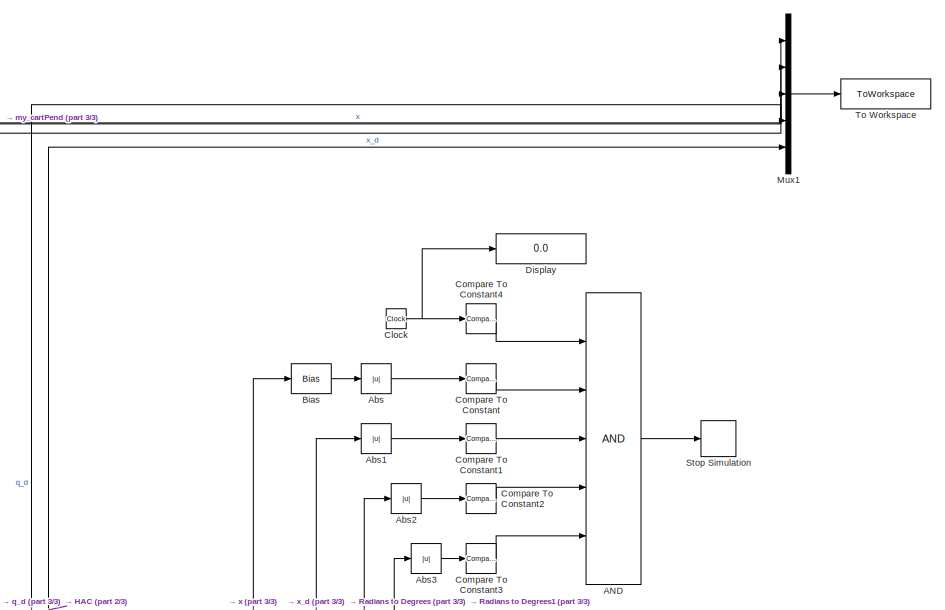
[diagram: root canvas - part 1/3, top right region]
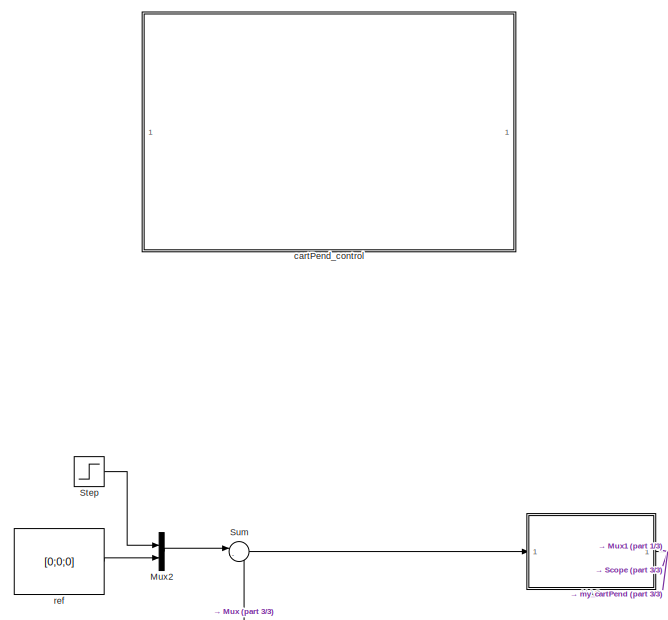
[diagram: root canvas - part 2/3, middle left region]
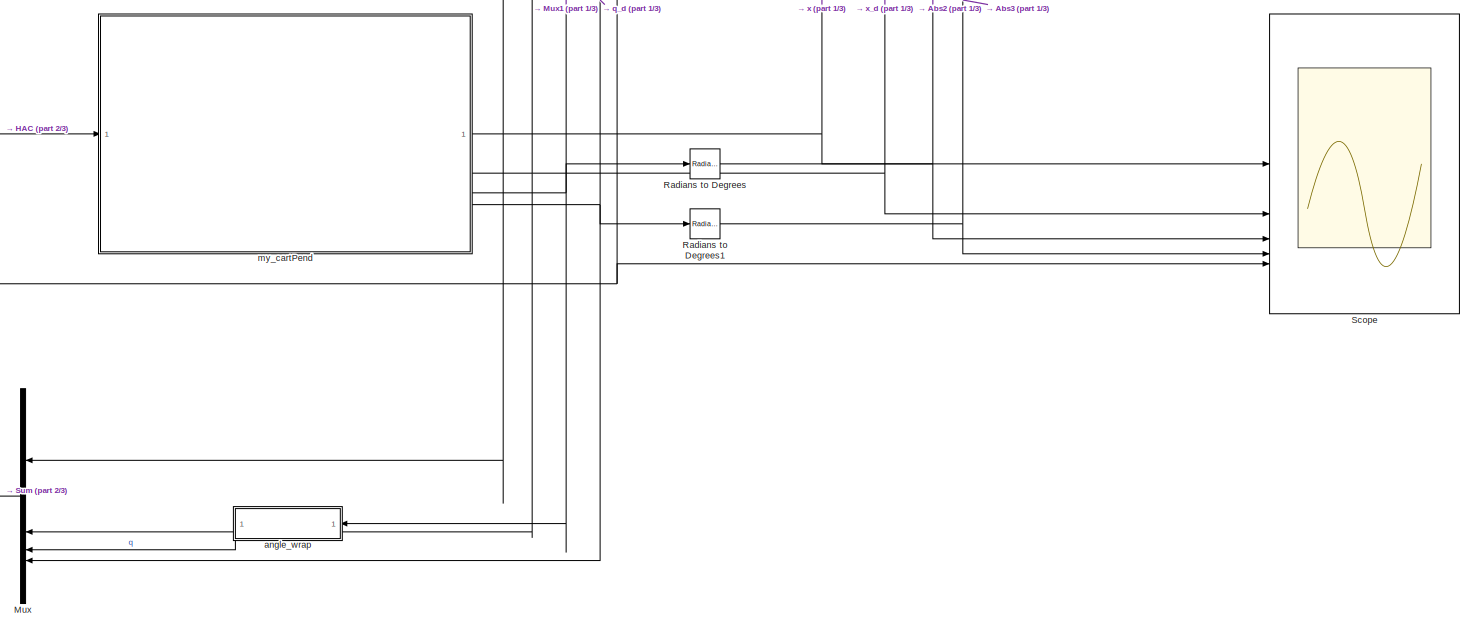
[diagram: root canvas - part 3/3, bottom right region]
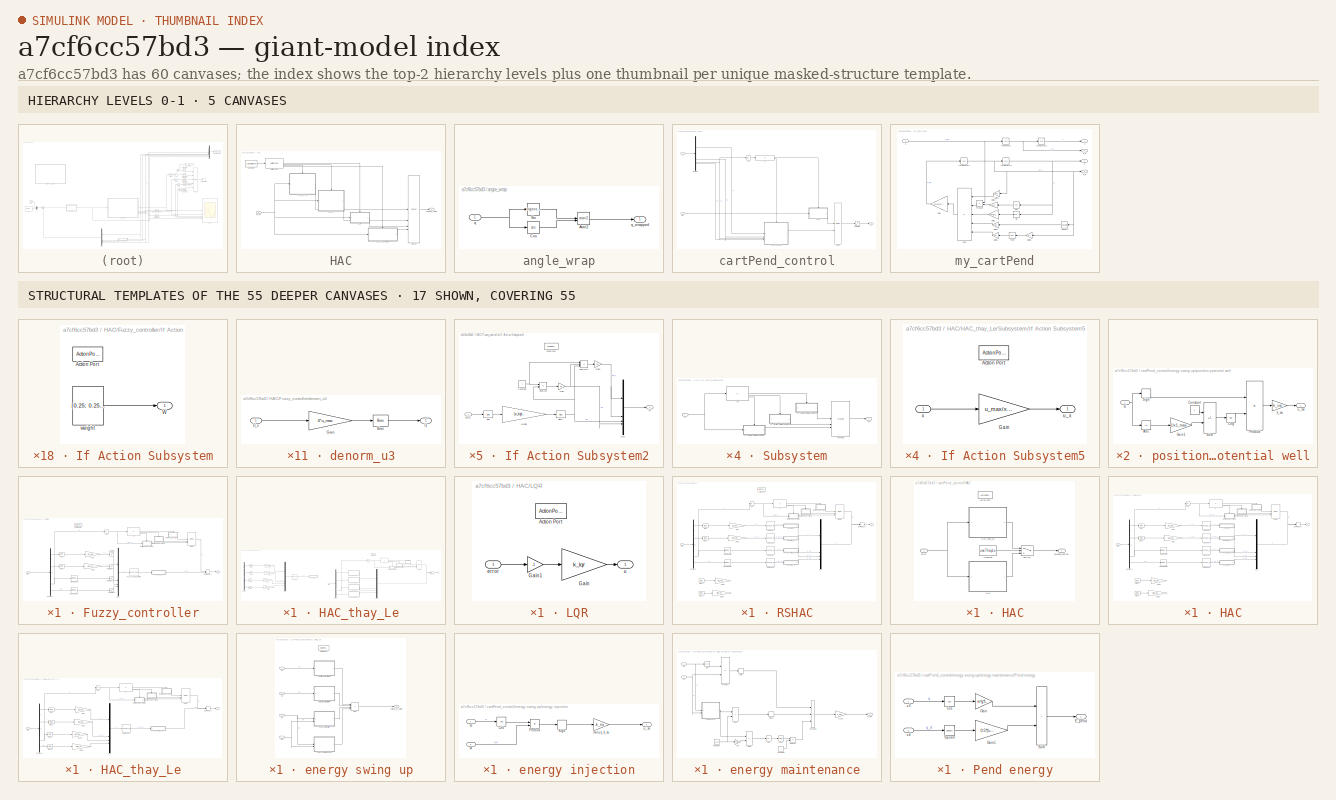
[diagram: thumbnail index - top-2 hierarchy levels (5 canvases) + 17 structural-template representatives of the remaining 55 canvases]
MODEL slx_a7cf6cc57bd3
KIND model
CONFIG AbsTol = auto
CONFIG EnableMultiTasking = off
CONFIG FixedStep = 0.001
CONFIG MaxStep = auto
CONFIG MinStep = auto
CONFIG RelTol = 1e-3
CONFIG SampleTimeConstraint = Unconstrained
CONFIG SolverName = ode4
CONFIG StartTime = 0.0
CONFIG StopTime = 8
BLOCK [Logic] AND
  AllPortsSameDT = off
  Inputs = 5
  OutDataTypeStr = boolean
BLOCK [Abs] Abs
  SaturateOnIntegerOverflow = off
BLOCK [Abs] Abs1
  SaturateOnIntegerOverflow = off
BLOCK [Abs] Abs2
  SaturateOnIntegerOverflow = off
BLOCK [Abs] Abs3
  SaturateOnIntegerOverflow = off
BLOCK [Bias] Bias
  Bias = -target_pos
  SaturateOnIntegerOverflow = off
BLOCK [Clock] Clock
BLOCK [Reference] Compare To Constant  REF=simulink/Logic and Bit
Operations/Compare
To Constant
  SourceBlock = simulink/Logic and Bit\nOperations/Compare\nTo Constant
  SourceType = Compare To Constant
BLOCK [Reference] Compare To Constant1  REF=simulink/Logic and Bit
Operations/Compare
To Constant
  SourceBlock = simulink/Logic and Bit\nOperations/Compare\nTo Constant
  SourceType = Compare To Constant
BLOCK [Reference] Compare To Constant2  REF=simulink/Logic and Bit
Operations/Compare
To Constant
  SourceBlock = simulink/Logic and Bit\nOperations/Compare\nTo Constant
  SourceType = Compare To Constant
BLOCK [Reference] Compare To Constant3  REF=simulink/Logic and Bit
Operations/Compare
To Constant
  SourceBlock = simulink/Logic and Bit\nOperations/Compare\nTo Constant
  SourceType = Compare To Constant
BLOCK [Reference] Compare To Constant4  REF=simulink/Logic and Bit
Operations/Compare
To Constant
  SourceBlock = simulink/Logic and Bit\nOperations/Compare\nTo Constant
  SourceType = Compare To Constant
BLOCK [Display] Display
  Decimation = 1
BLOCK [SubSystem] HAC
  TreatAsAtomicUnit = on
BLOCK [Constant] HAC/Constant
  Value = caseSwitch
BLOCK [SubSystem] HAC/Fuzzy_controller
  TreatAsAtomicUnit = on
BLOCK [Abs] HAC/Fuzzy_controller/Abs
  SaturateOnIntegerOverflow = off
BLOCK [ActionPort] HAC/Fuzzy_controller/Action Port
  ActionPortLabel = case [ 4 ]:
BLOCK [Bias] HAC/Fuzzy_controller/Bias
  Bias = -x_min
  SaturateOnIntegerOverflow = off
BLOCK [Bias] HAC/Fuzzy_controller/Bias1
  Bias = -xd_min
  SaturateOnIntegerOverflow = off
BLOCK [Demux] HAC/Fuzzy_controller/Demux4
BLOCK [DotProduct] HAC/Fuzzy_controller/Dot Product
  OutDataTypeStr = Inherit: Inherit via internal rule
BLOCK [Reference] HAC/Fuzzy_controller/Fuzzy Logic Controller  REF=fuzblock/Fuzzy Logic   (lib defined in mdl_858b3b3e7478)
Controller
  SourceBlock = fuzblock/Fuzzy Logic \nController
  SourceType = Fuzzy Inference System
BLOCK [Gain] HAC/Fuzzy_controller/Gain
  Gain = 1/(x_max-x_min)
BLOCK [Gain] HAC/Fuzzy_controller/Gain1
  Gain = 1/(xd_max-xd_min)
BLOCK [If] HAC/Fuzzy_controller/If
  ElseIfExpressions = u1 >= beta
  IfExpression = u1 <= alpha
BLOCK [SubSystem] HAC/Fuzzy_controller/If Action Subsystem
  TreatAsAtomicUnit = on
BLOCK [ActionPort] HAC/Fuzzy_controller/If Action Subsystem/Action Port
  ActionPortLabel = if(u1 <= alpha)
BLOCK [Outport] HAC/Fuzzy_controller/If Action Subsystem/W
BLOCK [Constant] HAC/Fuzzy_controller/If Action Subsystem/weight
  Value = [0.25; 0.25; 0.25; 0.25]
  VectorParams1D = off
BLOCK [SubSystem] HAC/Fuzzy_controller/If Action Subsystem1
  TreatAsAtomicUnit = on
BLOCK [ActionPort] HAC/Fuzzy_controller/If Action Subsystem1/Action Port
  ActionPortLabel = elseif(u1 >= beta)
BLOCK [Outport] HAC/Fuzzy_controller/If Action Subsystem1/W
BLOCK [Constant] HAC/Fuzzy_controller/If Action Subsystem1/weights
  Value = [0; 0; 1; 0]
  VectorParams1D = off
BLOCK [SubSystem] HAC/Fuzzy_controller/If Action Subsystem2
  TreatAsAtomicUnit = on
BLOCK [ActionPort] HAC/Fuzzy_controller/If Action Subsystem2/Action Port
  ActionPortLabel = else
BLOCK [Bias] HAC/Fuzzy_controller/If Action Subsystem2/Bias
  Bias = -alpha
  SaturateOnIntegerOverflow = off
BLOCK [Bias] HAC/Fuzzy_controller/If Action Subsystem2/Bias1
  Bias = w_low
  SaturateOnIntegerOverflow = off
BLOCK [Constant] HAC/Fuzzy_controller/If Action Subsystem2/Constant
BLOCK [Gain] HAC/Fuzzy_controller/If Action Subsystem2/Gain
  Gain = 0.5
BLOCK [Gain] HAC/Fuzzy_controller/If Action Subsystem2/Gain1
  Gain = 0.5
BLOCK [Gain] HAC/Fuzzy_controller/If Action Subsystem2/Multiply
  Gain = (w_high - w_low)/(beta - alpha)
BLOCK [Mux] HAC/Fuzzy_controller/If Action Subsystem2/Mux
  DisplayOption = bar
BLOCK [Sum] HAC/Fuzzy_controller/If Action Subsystem2/Subtract
  IconShape = rectangular
  Inputs = +-
BLOCK [Sum] HAC/Fuzzy_controller/If Action Subsystem2/Subtract1
  IconShape = rectangular
  Inputs = +--
BLOCK [Outport] HAC/Fuzzy_controller/If Action Subsystem2/W
BLOCK [Inport] HAC/Fuzzy_controller/If Action Subsystem2/abs_q
BLOCK [Merge] HAC/Fuzzy_controller/Merge
  Inputs = 3
BLOCK [Mux] HAC/Fuzzy_controller/Mux
  DisplayOption = bar
BLOCK [Saturate] HAC/Fuzzy_controller/Saturation
  LowerLimit = 0.25
  UpperLimit = 0.75
BLOCK [Saturate] HAC/Fuzzy_controller/Saturation1
  LowerLimit = 0.25
  UpperLimit = 0.75
BLOCK [Saturate] HAC/Fuzzy_controller/Saturation2
  LowerLimit = 0.25
  UpperLimit = 0.75
BLOCK [Saturate] HAC/Fuzzy_controller/Saturation3
  LowerLimit = 0.25
  UpperLimit = 0.75
BLOCK [Reference] HAC/Fuzzy_controller/Sigmoidal MF  REF=fuzblock/Membership   (lib defined in mdl_858b3b3e7478)
Functions/Sigmoidal MF
  SourceBlock = fuzblock/Membership \nFunctions/Sigmoidal MF
  SourceType = Sigmoidal membership function
BLOCK [Reference] HAC/Fuzzy_controller/Sigmoidal MF1  REF=fuzblock/Membership   (lib defined in mdl_858b3b3e7478)
Functions/Sigmoidal MF
  SourceBlock = fuzblock/Membership \nFunctions/Sigmoidal MF
  SourceType = Sigmoidal membership function
BLOCK [SubSystem] HAC/Fuzzy_controller/denorm_u3
BLOCK [Bias] HAC/Fuzzy_controller/denorm_u3/Bias
  Bias = 2*u_min
  SaturateOnIntegerOverflow = off
BLOCK [Gain] HAC/Fuzzy_controller/denorm_u3/Gain
  Gain = 4*u_max
BLOCK [Outport] HAC/Fuzzy_controller/denorm_u3/U
BLOCK [Inport] HAC/Fuzzy_controller/denorm_u3/U_s
BLOCK [Inport] HAC/Fuzzy_controller/error
BLOCK [Outport] HAC/Fuzzy_controller/u
BLOCK [SubSystem] HAC/HAC_thay_Le
BLOCK [Abs] HAC/HAC_thay_Le/Abs
  SaturateOnIntegerOverflow = off
BLOCK [ActionPort] HAC/HAC_thay_Le/Action Port
  ActionPortLabel = case [ 3 ]:
BLOCK [Bias] HAC/HAC_thay_Le/Bias
  Bias = -x_min
  Commented = on
  SaturateOnIntegerOverflow = off
BLOCK [Bias] HAC/HAC_thay_Le/Bias1
  Bias = -xd_min
  Commented = on
  SaturateOnIntegerOverflow = off
BLOCK [Bias] HAC/HAC_thay_Le/Bias2
  Bias = -q_min
  Commented = on
  SaturateOnIntegerOverflow = off
BLOCK [Bias] HAC/HAC_thay_Le/Bias3
  Bias = -qd_min
  Commented = on
  SaturateOnIntegerOverflow = off
BLOCK [Demux] HAC/HAC_thay_Le/Demux1
BLOCK [Demux] HAC/HAC_thay_Le/Demux4
  Commented = on
BLOCK [DotProduct] HAC/HAC_thay_Le/Dot Product
  OutDataTypeStr = Inherit: Inherit via internal rule
BLOCK [Gain] HAC/HAC_thay_Le/Gain
  Commented = on
  Gain = 1/(x_max-x_min)
BLOCK [Gain] HAC/HAC_thay_Le/Gain1
  Commented = on
  Gain = 1/(xd_max-xd_min)
BLOCK [Gain] HAC/HAC_thay_Le/Gain2
  Commented = on
  Gain = 1/(q_max-q_min)
BLOCK [Gain] HAC/HAC_thay_Le/Gain3
  Commented = on
  Gain = 1/(qd_max-qd_min)
BLOCK [If] HAC/HAC_thay_Le/If
  ElseIfExpressions = u1 >= beta
  IfExpression = u1 <= alpha
BLOCK [SubSystem] HAC/HAC_thay_Le/If Action Subsystem
  TreatAsAtomicUnit = on
BLOCK [ActionPort] HAC/HAC_thay_Le/If Action Subsystem/Action Port
  ActionPortLabel = if(u1 <= alpha)
BLOCK [Outport] HAC/HAC_thay_Le/If Action Subsystem/W
BLOCK [Constant] HAC/HAC_thay_Le/If Action Subsystem/weight
  Value = [0.25; 0.25; 0.25; 0.25]
  VectorParams1D = off
BLOCK [SubSystem] HAC/HAC_thay_Le/If Action Subsystem1
  TreatAsAtomicUnit = on
BLOCK [ActionPort] HAC/HAC_thay_Le/If Action Subsystem1/Action Port
  ActionPortLabel = elseif(u1 >= beta)
BLOCK [Outport] HAC/HAC_thay_Le/If Action Subsystem1/W
BLOCK [Constant] HAC/HAC_thay_Le/If Action Subsystem1/weights
  Value = [0; 0; 1; 0]
  VectorParams1D = off
BLOCK [SubSystem] HAC/HAC_thay_Le/If Action Subsystem2
  TreatAsAtomicUnit = on
BLOCK [ActionPort] HAC/HAC_thay_Le/If Action Subsystem2/Action Port
  ActionPortLabel = else
BLOCK [Bias] HAC/HAC_thay_Le/If Action Subsystem2/Bias2
  Bias = -alpha
  SaturateOnIntegerOverflow = off
BLOCK [Bias] HAC/HAC_thay_Le/If Action Subsystem2/Bias3
  Bias = w_low
  SaturateOnIntegerOverflow = off
BLOCK [Constant] HAC/HAC_thay_Le/If Action Subsystem2/Constant1
BLOCK [Gain] HAC/HAC_thay_Le/If Action Subsystem2/Gain2
  Gain = 0.5
BLOCK [Gain] HAC/HAC_thay_Le/If Action Subsystem2/Gain3
  Gain = 0.5
BLOCK [Gain] HAC/HAC_thay_Le/If Action Subsystem2/Multiply1
  Gain = (w_high - w_low)/(beta - alpha)
BLOCK [Mux] HAC/HAC_thay_Le/If Action Subsystem2/Mux1
  DisplayOption = bar
BLOCK [Sum] HAC/HAC_thay_Le/If Action Subsystem2/Subtract2
  IconShape = rectangular
  Inputs = +-
BLOCK [Sum] HAC/HAC_thay_Le/If Action Subsystem2/Subtract3
  IconShape = rectangular
  Inputs = +--
BLOCK [Outport] HAC/HAC_thay_Le/If Action Subsystem2/W
BLOCK [Inport] HAC/HAC_thay_Le/If Action Subsystem2/abs_q
BLOCK [Merge] HAC/HAC_thay_Le/Merge
  Inputs = 3
BLOCK [Mux] HAC/HAC_thay_Le/Mux
  Commented = on
  DisplayOption = bar
BLOCK [Mux] HAC/HAC_thay_Le/Mux1
  DisplayOption = bar
BLOCK [SubSystem] HAC/HAC_thay_Le/Subsystem
BLOCK [SubSystem] HAC/HAC_thay_Le/Subsystem/If Action Subsystem3
  TreatAsAtomicUnit = on
BLOCK [ActionPort] HAC/HAC_thay_Le/Subsystem/If Action Subsystem3/Action Port
  ActionPortLabel = if(u1 <= x_min)
BLOCK [Constant] HAC/HAC_thay_Le/Subsystem/If Action Subsystem3/Constant
  Value = u_min
BLOCK [Outport] HAC/HAC_thay_Le/Subsystem/If Action Subsystem3/u_min
BLOCK [SubSystem] HAC/HAC_thay_Le/Subsystem/If Action Subsystem4
  TreatAsAtomicUnit = on
BLOCK [ActionPort] HAC/HAC_thay_Le/Subsystem/If Action Subsystem4/Action Port
  ActionPortLabel = elseif(u1 >= x_max)
BLOCK [Constant] HAC/HAC_thay_Le/Subsystem/If Action Subsystem4/Constant
  Value = u_max
BLOCK [Outport] HAC/HAC_thay_Le/Subsystem/If Action Subsystem4/u_max
BLOCK [SubSystem] HAC/HAC_thay_Le/Subsystem/If Action Subsystem5
  TreatAsAtomicUnit = on
BLOCK [ActionPort] HAC/HAC_thay_Le/Subsystem/If Action Subsystem5/Action Port
  ActionPortLabel = else
BLOCK [Gain] HAC/HAC_thay_Le/Subsystem/If Action Subsystem5/Gain
  Gain = u_max/x_max
BLOCK [Outport] HAC/HAC_thay_Le/Subsystem/If Action Subsystem5/u_x
BLOCK [Inport] HAC/HAC_thay_Le/Subsystem/If Action Subsystem5/x
BLOCK [If] HAC/HAC_thay_Le/Subsystem/If1
  ElseIfExpressions = u1 >= x_max
  IfExpression = u1 <= x_min
BLOCK [Merge] HAC/HAC_thay_Le/Subsystem/Merge1
  Inputs = 3
BLOCK [Outport] HAC/HAC_thay_Le/Subsystem/u_x
BLOCK [Inport] HAC/HAC_thay_Le/Subsystem/x
BLOCK [SubSystem] HAC/HAC_thay_Le/Subsystem1
BLOCK [SubSystem] HAC/HAC_thay_Le/Subsystem1/If Action Subsystem3
  TreatAsAtomicUnit = on
BLOCK [ActionPort] HAC/HAC_thay_Le/Subsystem1/If Action Subsystem3/Action Port
  ActionPortLabel = if(u1 <= xd_min)
BLOCK [Constant] HAC/HAC_thay_Le/Subsystem1/If Action Subsystem3/Constant
  Value = u_min
BLOCK [Outport] HAC/HAC_thay_Le/Subsystem1/If Action Subsystem3/u_min
BLOCK [SubSystem] HAC/HAC_thay_Le/Subsystem1/If Action Subsystem4
  TreatAsAtomicUnit = on
BLOCK [ActionPort] HAC/HAC_thay_Le/Subsystem1/If Action Subsystem4/Action Port
  ActionPortLabel = elseif(u1 >= xd_max)
BLOCK [Constant] HAC/HAC_thay_Le/Subsystem1/If Action Subsystem4/Constant
  Value = u_max
BLOCK [Outport] HAC/HAC_thay_Le/Subsystem1/If Action Subsystem4/u_max
BLOCK [SubSystem] HAC/HAC_thay_Le/Subsystem1/If Action Subsystem5
  TreatAsAtomicUnit = on
BLOCK [ActionPort] HAC/HAC_thay_Le/Subsystem1/If Action Subsystem5/Action Port
  ActionPortLabel = else
BLOCK [Gain] HAC/HAC_thay_Le/Subsystem1/If Action Subsystem5/Gain
  Gain = u_max/xd_max
BLOCK [Outport] HAC/HAC_thay_Le/Subsystem1/If Action Subsystem5/u_xd
BLOCK [Inport] HAC/HAC_thay_Le/Subsystem1/If Action Subsystem5/xd
BLOCK [If] HAC/HAC_thay_Le/Subsystem1/If1
  ElseIfExpressions = u1 >= xd_max
  IfExpression = u1 <= xd_min
BLOCK [Merge] HAC/HAC_thay_Le/Subsystem1/Merge1
  Inputs = 3
BLOCK [Outport] HAC/HAC_thay_Le/Subsystem1/u_xd
BLOCK [Inport] HAC/HAC_thay_Le/Subsystem1/xd
BLOCK [SubSystem] HAC/HAC_thay_Le/Subsystem2
BLOCK [SubSystem] HAC/HAC_thay_Le/Subsystem2/If Action Subsystem3
  TreatAsAtomicUnit = on
BLOCK [ActionPort] HAC/HAC_thay_Le/Subsystem2/If Action Subsystem3/Action Port
  ActionPortLabel = if(u1 <= q_min)
BLOCK [Constant] HAC/HAC_thay_Le/Subsystem2/If Action Subsystem3/Constant
  Value = u_min
BLOCK [Outport] HAC/HAC_thay_Le/Subsystem2/If Action Subsystem3/u_min
BLOCK [SubSystem] HAC/HAC_thay_Le/Subsystem2/If Action Subsystem4
  TreatAsAtomicUnit = on
BLOCK [ActionPort] HAC/HAC_thay_Le/Subsystem2/If Action Subsystem4/Action Port
  ActionPortLabel = elseif(u1 >= q_max)
BLOCK [Constant] HAC/HAC_thay_Le/Subsystem2/If Action Subsystem4/Constant
  Value = u_max
BLOCK [Outport] HAC/HAC_thay_Le/Subsystem2/If Action Subsystem4/u_max
BLOCK [SubSystem] HAC/HAC_thay_Le/Subsystem2/If Action Subsystem5
  TreatAsAtomicUnit = on
BLOCK [ActionPort] HAC/HAC_thay_Le/Subsystem2/If Action Subsystem5/Action Port
  ActionPortLabel = else
BLOCK [Gain] HAC/HAC_thay_Le/Subsystem2/If Action Subsystem5/Gain
  Gain = u_max/q_max
BLOCK [Inport] HAC/HAC_thay_Le/Subsystem2/If Action Subsystem5/q
BLOCK [Outport] HAC/HAC_thay_Le/Subsystem2/If Action Subsystem5/u_q
BLOCK [If] HAC/HAC_thay_Le/Subsystem2/If1
  ElseIfExpressions = u1 >= q_max
  IfExpression = u1 <= q_min
BLOCK [Merge] HAC/HAC_thay_Le/Subsystem2/Merge1
  Inputs = 3
BLOCK [Inport] HAC/HAC_thay_Le/Subsystem2/q
BLOCK [Outport] HAC/HAC_thay_Le/Subsystem2/u_q
BLOCK [SubSystem] HAC/HAC_thay_Le/Subsystem3
BLOCK [SubSystem] HAC/HAC_thay_Le/Subsystem3/If Action Subsystem3
  TreatAsAtomicUnit = on
BLOCK [ActionPort] HAC/HAC_thay_Le/Subsystem3/If Action Subsystem3/Action Port
  ActionPortLabel = if(u1 <= qd_min)
BLOCK [Constant] HAC/HAC_thay_Le/Subsystem3/If Action Subsystem3/Constant
  Value = u_min
BLOCK [Outport] HAC/HAC_thay_Le/Subsystem3/If Action Subsystem3/u_min
BLOCK [SubSystem] HAC/HAC_thay_Le/Subsystem3/If Action Subsystem4
  TreatAsAtomicUnit = on
BLOCK [ActionPort] HAC/HAC_thay_Le/Subsystem3/If Action Subsystem4/Action Port
  ActionPortLabel = elseif(u1 >= qd_max)
BLOCK [Constant] HAC/HAC_thay_Le/Subsystem3/If Action Subsystem4/Constant
  Value = u_max
BLOCK [Outport] HAC/HAC_thay_Le/Subsystem3/If Action Subsystem4/u_max
BLOCK [SubSystem] HAC/HAC_thay_Le/Subsystem3/If Action Subsystem5
  TreatAsAtomicUnit = on
BLOCK [ActionPort] HAC/HAC_thay_Le/Subsystem3/If Action Subsystem5/Action Port
  ActionPortLabel = else
BLOCK [Gain] HAC/HAC_thay_Le/Subsystem3/If Action Subsystem5/Gain
  Gain = u_max/qd_max
BLOCK [Inport] HAC/HAC_thay_Le/Subsystem3/If Action Subsystem5/qd
BLOCK [Outport] HAC/HAC_thay_Le/Subsystem3/If Action Subsystem5/u_qd
BLOCK [If] HAC/HAC_thay_Le/Subsystem3/If1
  ElseIfExpressions = u1 >= qd_max
  IfExpression = u1 <= qd_min
BLOCK [Merge] HAC/HAC_thay_Le/Subsystem3/Merge1
  Inputs = 3
BLOCK [Inport] HAC/HAC_thay_Le/Subsystem3/qd
BLOCK [Outport] HAC/HAC_thay_Le/Subsystem3/u_qd
BLOCK [SubSystem] HAC/HAC_thay_Le/denorm_u3
  Commented = on
BLOCK [Bias] HAC/HAC_thay_Le/denorm_u3/Bias
  Bias = u_min
  SaturateOnIntegerOverflow = off
BLOCK [Gain] HAC/HAC_thay_Le/denorm_u3/Gain
  Gain = u_max - u_min
BLOCK [Outport] HAC/HAC_thay_Le/denorm_u3/U
BLOCK [Inport] HAC/HAC_thay_Le/denorm_u3/U_s
BLOCK [Inport] HAC/HAC_thay_Le/error
BLOCK [Lookup_n-D] HAC/HAC_thay_Le/qd lookup
  BreakpointsForDimension1 = SQMs_state
  Commented = on
  InputPortMap = u0
  InternalRulePriority = Speed
  NumberOfTableDimensions = 1
  RndMeth = Simplest
  Table = SQMs_u
BLOCK [Outport] HAC/HAC_thay_Le/u
BLOCK [SubSystem] HAC/LQR
BLOCK [ActionPort] HAC/LQR/Action Port
  ActionPortLabel = case [ 1 ]:
BLOCK [Gain] HAC/LQR/Gain
  Gain = k_lqr
  Multiplication = Matrix(K*u)
BLOCK [Gain] HAC/LQR/Gain1
  Gain = -1
BLOCK [Inport] HAC/LQR/error
BLOCK [Outport] HAC/LQR/u
BLOCK [Merge] HAC/Merge
  Inputs = 4
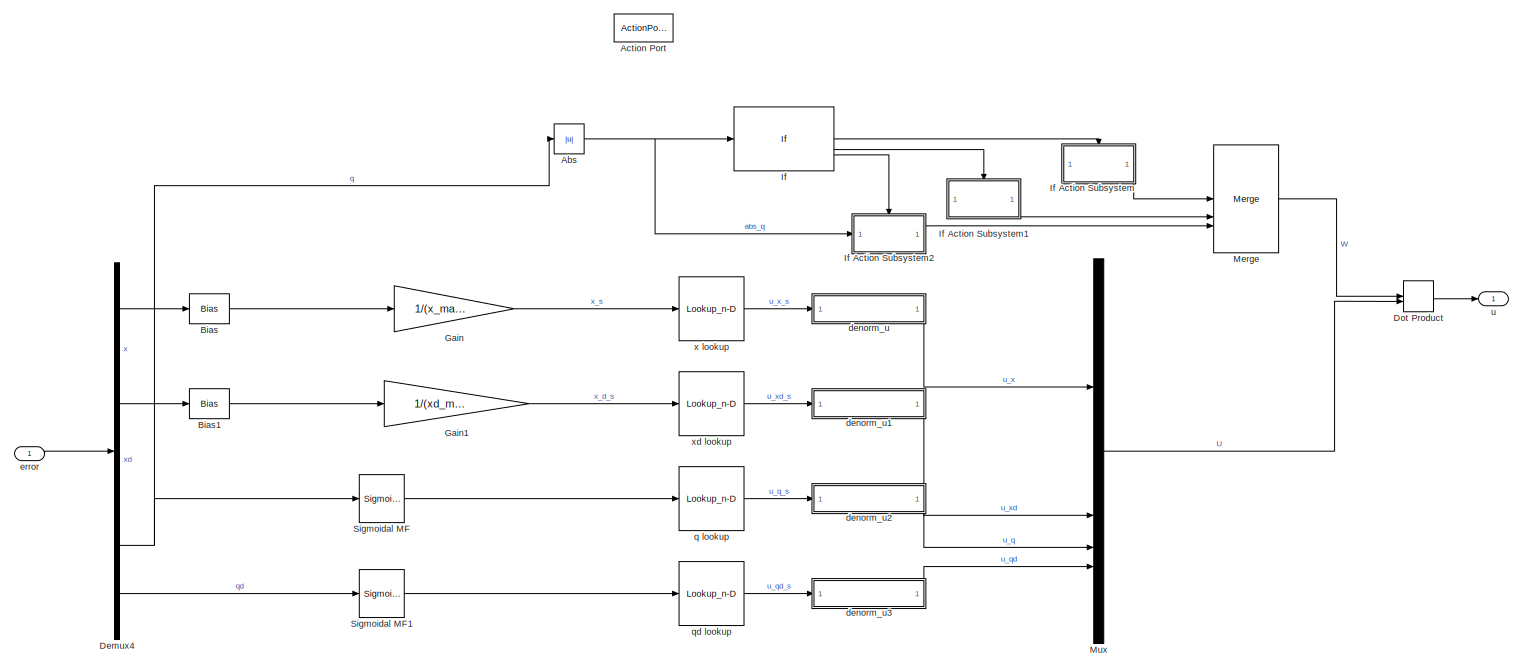
[diagram: HAC/RSHAC - part 1/2, most of the canvas]
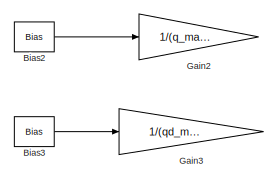
[diagram: HAC/RSHAC - part 2/2, bottom left region]
BLOCK [SubSystem] HAC/RSHAC
BLOCK [Abs] HAC/RSHAC/Abs
  SaturateOnIntegerOverflow = off
BLOCK [ActionPort] HAC/RSHAC/Action Port
  ActionPortLabel = case [ 2 ]:
BLOCK [Bias] HAC/RSHAC/Bias
  Bias = -x_min
  SaturateOnIntegerOverflow = off
BLOCK [Bias] HAC/RSHAC/Bias1
  Bias = -xd_min
  SaturateOnIntegerOverflow = off
BLOCK [Bias] HAC/RSHAC/Bias2
  Bias = -q_min
  Commented = on
  SaturateOnIntegerOverflow = off
BLOCK [Bias] HAC/RSHAC/Bias3
  Bias = -qd_min
  Commented = on
  SaturateOnIntegerOverflow = off
BLOCK [Demux] HAC/RSHAC/Demux4
BLOCK [DotProduct] HAC/RSHAC/Dot Product
  OutDataTypeStr = Inherit: Inherit via internal rule
BLOCK [Gain] HAC/RSHAC/Gain
  Gain = 1/(x_max-x_min)
BLOCK [Gain] HAC/RSHAC/Gain1
  Gain = 1/(xd_max-xd_min)
BLOCK [Gain] HAC/RSHAC/Gain2
  Commented = on
  Gain = 1/(q_max-q_min)
BLOCK [Gain] HAC/RSHAC/Gain3
  Commented = on
  Gain = 1/(qd_max-qd_min)
BLOCK [If] HAC/RSHAC/If
  ElseIfExpressions = u1 >= beta
  IfExpression = u1 <= alpha
BLOCK [SubSystem] HAC/RSHAC/If Action Subsystem
  TreatAsAtomicUnit = on
BLOCK [ActionPort] HAC/RSHAC/If Action Subsystem/Action Port
  ActionPortLabel = if(u1 <= alpha)
BLOCK [Outport] HAC/RSHAC/If Action Subsystem/W
BLOCK [Constant] HAC/RSHAC/If Action Subsystem/weight
  Value = [0.25; 0.25; 0.25; 0.25]
  VectorParams1D = off
BLOCK [SubSystem] HAC/RSHAC/If Action Subsystem1
  TreatAsAtomicUnit = on
BLOCK [ActionPort] HAC/RSHAC/If Action Subsystem1/Action Port
  ActionPortLabel = elseif(u1 >= beta)
BLOCK [Outport] HAC/RSHAC/If Action Subsystem1/W
BLOCK [Constant] HAC/RSHAC/If Action Subsystem1/weights
  Value = [0; 0; 1; 0]
  VectorParams1D = off
BLOCK [SubSystem] HAC/RSHAC/If Action Subsystem2
  TreatAsAtomicUnit = on
BLOCK [ActionPort] HAC/RSHAC/If Action Subsystem2/Action Port
  ActionPortLabel = else
BLOCK [Bias] HAC/RSHAC/If Action Subsystem2/Bias
  Bias = -alpha
  SaturateOnIntegerOverflow = off
BLOCK [Bias] HAC/RSHAC/If Action Subsystem2/Bias1
  Bias = w_low
  SaturateOnIntegerOverflow = off
BLOCK [Constant] HAC/RSHAC/If Action Subsystem2/Constant
BLOCK [Gain] HAC/RSHAC/If Action Subsystem2/Gain
  Gain = 0.5
BLOCK [Gain] HAC/RSHAC/If Action Subsystem2/Gain1
  Gain = 0.5
BLOCK [Gain] HAC/RSHAC/If Action Subsystem2/Multiply
  Gain = (w_high - w_low)/(beta - alpha)
BLOCK [Mux] HAC/RSHAC/If Action Subsystem2/Mux
  DisplayOption = bar
BLOCK [Sum] HAC/RSHAC/If Action Subsystem2/Subtract
  IconShape = rectangular
  Inputs = +-
BLOCK [Sum] HAC/RSHAC/If Action Subsystem2/Subtract1
  IconShape = rectangular
  Inputs = +--
BLOCK [Outport] HAC/RSHAC/If Action Subsystem2/W
BLOCK [Inport] HAC/RSHAC/If Action Subsystem2/abs_q
BLOCK [Merge] HAC/RSHAC/Merge
  Inputs = 3
BLOCK [Mux] HAC/RSHAC/Mux
  DisplayOption = bar
BLOCK [Reference] HAC/RSHAC/Sigmoidal MF  REF=fuzblock/Membership   (lib defined in mdl_858b3b3e7478)
Functions/Sigmoidal MF
  SourceBlock = fuzblock/Membership \nFunctions/Sigmoidal MF
  SourceType = Sigmoidal membership function
BLOCK [Reference] HAC/RSHAC/Sigmoidal MF1  REF=fuzblock/Membership   (lib defined in mdl_858b3b3e7478)
Functions/Sigmoidal MF
  SourceBlock = fuzblock/Membership \nFunctions/Sigmoidal MF
  SourceType = Sigmoidal membership function
BLOCK [SubSystem] HAC/RSHAC/denorm_u
BLOCK [Bias] HAC/RSHAC/denorm_u/Bias
  Bias = u_min
  SaturateOnIntegerOverflow = off
BLOCK [Gain] HAC/RSHAC/denorm_u/Gain
  Gain = u_max - u_min
BLOCK [Outport] HAC/RSHAC/denorm_u/U
BLOCK [Inport] HAC/RSHAC/denorm_u/U_s
BLOCK [SubSystem] HAC/RSHAC/denorm_u1
BLOCK [Bias] HAC/RSHAC/denorm_u1/Bias
  Bias = u_min
  SaturateOnIntegerOverflow = off
BLOCK [Gain] HAC/RSHAC/denorm_u1/Gain
  Gain = u_max - u_min
BLOCK [Outport] HAC/RSHAC/denorm_u1/U
BLOCK [Inport] HAC/RSHAC/denorm_u1/U_s
BLOCK [SubSystem] HAC/RSHAC/denorm_u2
BLOCK [Bias] HAC/RSHAC/denorm_u2/Bias
  Bias = u_min
  SaturateOnIntegerOverflow = off
BLOCK [Gain] HAC/RSHAC/denorm_u2/Gain
  Gain = u_max - u_min
BLOCK [Outport] HAC/RSHAC/denorm_u2/U
BLOCK [Inport] HAC/RSHAC/denorm_u2/U_s
BLOCK [SubSystem] HAC/RSHAC/denorm_u3
BLOCK [Bias] HAC/RSHAC/denorm_u3/Bias
  Bias = u_min
  SaturateOnIntegerOverflow = off
BLOCK [Gain] HAC/RSHAC/denorm_u3/Gain
  Gain = u_max - u_min
BLOCK [Outport] HAC/RSHAC/denorm_u3/U
BLOCK [Inport] HAC/RSHAC/denorm_u3/U_s
BLOCK [Inport] HAC/RSHAC/error
BLOCK [Lookup_n-D] HAC/RSHAC/q lookup
  BreakpointsForDimension1 = q_sqm
  InputPortMap = u0
  InternalRulePriority = Speed
  NumberOfTableDimensions = 1
  RndMeth = Simplest
  Table = u_q_sqm
BLOCK [Lookup_n-D] HAC/RSHAC/qd lookup
  BreakpointsForDimension1 = qd_sqm
  InputPortMap = u0
  InternalRulePriority = Speed
  NumberOfTableDimensions = 1
  RndMeth = Simplest
  Table = u_qd_sqm
BLOCK [Outport] HAC/RSHAC/u
BLOCK [Lookup_n-D] HAC/RSHAC/x lookup
  BreakpointsForDimension1 = x_sqm
  InputPortMap = u0
  InternalRulePriority = Speed
  NumberOfTableDimensions = 1
  RndMeth = Simplest
  Table = u_x_sqm
BLOCK [Lookup_n-D] HAC/RSHAC/xd lookup
  BreakpointsForDimension1 = xd_sqm
  InputPortMap = u0
  InternalRulePriority = Speed
  NumberOfTableDimensions = 1
  RndMeth = Simplest
  Table = u_xd_sqm
BLOCK [SwitchCase] HAC/Switch Case
  CaseConditions = {1,2,3,4}
  ShowDefaultCase = off
BLOCK [Outport] HAC/balance_action
BLOCK [Inport] HAC/error
BLOCK [Mux] Mux
  DisplayOption = bar
  NameLocation = top
BLOCK [Mux] Mux1
  DisplayOption = bar
  Inputs = 5
BLOCK [Mux] Mux2
  DisplayOption = bar
  Inputs = 2
BLOCK [Reference] Radians to Degrees  REF=simulink_extras/Transformations/Radians
to Degrees
  SourceBlock = simulink_extras/Transformations/Radians\nto Degrees
  SourceType = RadiansToDegrees
BLOCK [Reference] Radians to Degrees1  REF=simulink_extras/Transformations/Radians
to Degrees
  SourceBlock = simulink_extras/Transformations/Radians\nto Degrees
  SourceType = RadiansToDegrees
BLOCK [Scope] Scope
  Floating = off
  NumInputPorts = 5
  ScopeSpecificationString = Simulink.scopes.TimeScopeBlockCfg('CurrentConfiguration', extmgr.ConfigurationSet(extmgr.Configuration('Core','General UI',true,'FigureColor',[1 1 1]),extmgr.Configuration('Core','Source UI',true),extmgr.Configuration('Sources','WiredSimulink',true),extmgr.Configuration('Visuals','Time Domain',true,'TimeAxisLabels','All','SerializedDisplays',{struct('MinYLimReal','-0.01782','MaxYLimReal','0.11958'...<+7784ch>
BLOCK [Step] Step
  After = target_pos
  SampleTime = 0
BLOCK [Stop] Stop Simulation
  Commented = on
BLOCK [Sum] Sum
  Inputs = |-+
BLOCK [ToWorkspace] To Workspace
  FixptAsFi = on
  MaxDataPoints = inf
  SampleTime = -1
  SaveFormat = Timeseries
  VariableName = data_RSHAC
BLOCK [SubSystem] angle_wrap
  NameLocation = top
BLOCK [Trigonometry] angle_wrap/Atan2
  Operator = atan2
BLOCK [Trigonometry] angle_wrap/Cos
  Operator = cos
BLOCK [Trigonometry] angle_wrap/Sin
BLOCK [Inport] angle_wrap/q
BLOCK [Outport] angle_wrap/q_wrapped
BLOCK [SubSystem] cartPend_control
  Commented = on
  SystemSampleTime = 0.001
BLOCK [Abs] cartPend_control/Abs
  SaturateOnIntegerOverflow = off
BLOCK [Demux] cartPend_control/Demux
BLOCK [SubSystem] cartPend_control/HAC
  TreatAsAtomicUnit = on
BLOCK [ActionPort] cartPend_control/HAC/Action Port
  ActionPortLabel = if(u1 < angle_threshold)
BLOCK [Constant] cartPend_control/HAC/Constant
  Value = useThayLe
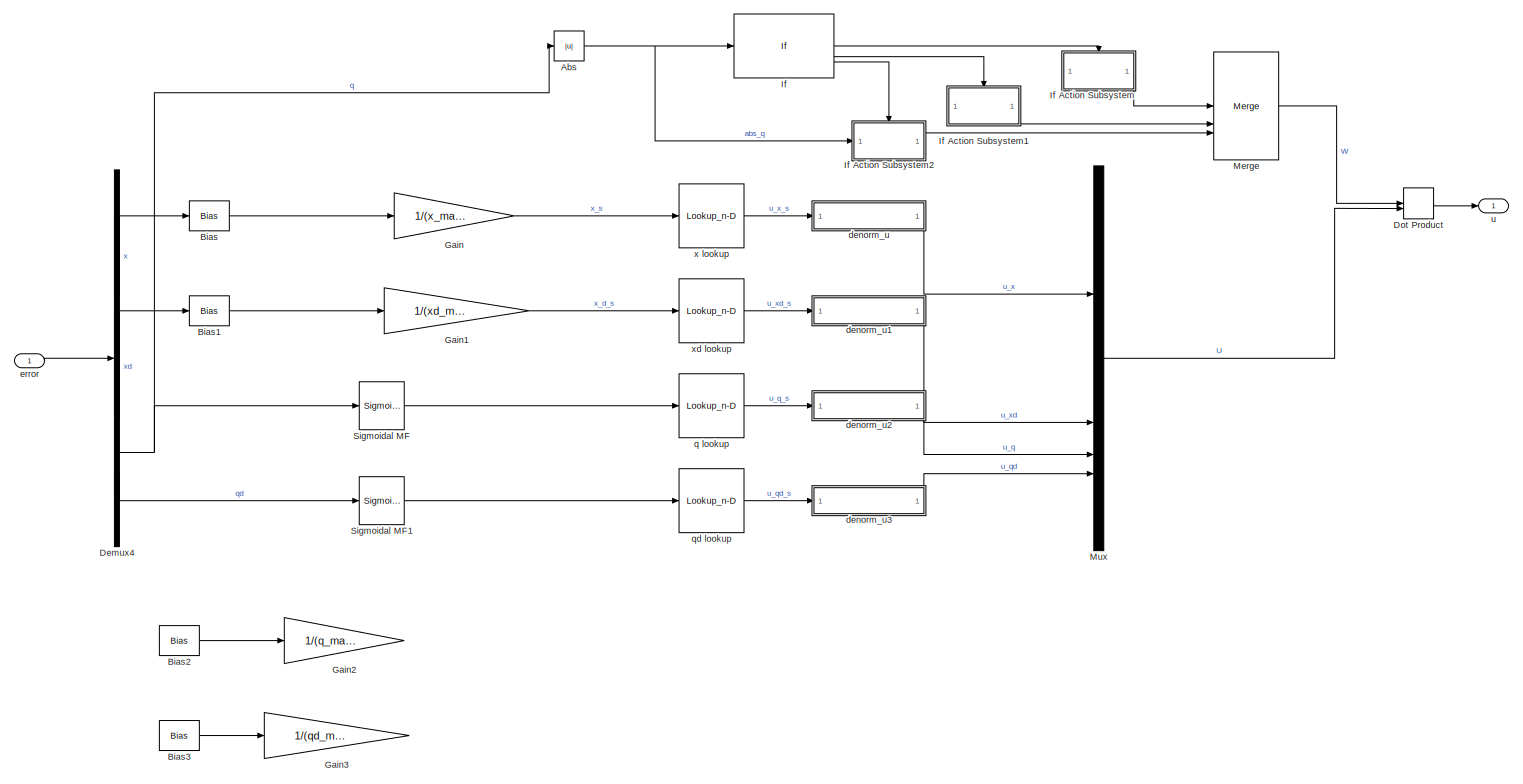
[diagram: cartPend_control/HAC/HAC - part 1/1, most of the canvas]
BLOCK [SubSystem] cartPend_control/HAC/HAC
BLOCK [Abs] cartPend_control/HAC/HAC/Abs
  SaturateOnIntegerOverflow = off
BLOCK [Bias] cartPend_control/HAC/HAC/Bias
  Bias = -x_min
  SaturateOnIntegerOverflow = off
BLOCK [Bias] cartPend_control/HAC/HAC/Bias1
  Bias = -xd_min
  SaturateOnIntegerOverflow = off
BLOCK [Bias] cartPend_control/HAC/HAC/Bias2
  Bias = -q_min
  Commented = on
  SaturateOnIntegerOverflow = off
BLOCK [Bias] cartPend_control/HAC/HAC/Bias3
  Bias = -qd_min
  Commented = on
  SaturateOnIntegerOverflow = off
BLOCK [Demux] cartPend_control/HAC/HAC/Demux4
BLOCK [DotProduct] cartPend_control/HAC/HAC/Dot Product
  OutDataTypeStr = Inherit: Inherit via internal rule
BLOCK [Gain] cartPend_control/HAC/HAC/Gain
  Gain = 1/(x_max-x_min)
BLOCK [Gain] cartPend_control/HAC/HAC/Gain1
  Gain = 1/(xd_max-xd_min)
BLOCK [Gain] cartPend_control/HAC/HAC/Gain2
  Commented = on
  Gain = 1/(q_max-q_min)
BLOCK [Gain] cartPend_control/HAC/HAC/Gain3
  Commented = on
  Gain = 1/(qd_max-qd_min)
BLOCK [If] cartPend_control/HAC/HAC/If
  ElseIfExpressions = u1 >= beta
  IfExpression = u1 <= alpha
BLOCK [SubSystem] cartPend_control/HAC/HAC/If Action Subsystem
  TreatAsAtomicUnit = on
BLOCK [ActionPort] cartPend_control/HAC/HAC/If Action Subsystem/Action Port
  ActionPortLabel = if(u1 <= alpha)
BLOCK [Outport] cartPend_control/HAC/HAC/If Action Subsystem/W
BLOCK [Constant] cartPend_control/HAC/HAC/If Action Subsystem/weight
  Value = [0.25; 0.25; 0.25; 0.25]
  VectorParams1D = off
BLOCK [SubSystem] cartPend_control/HAC/HAC/If Action Subsystem1
  TreatAsAtomicUnit = on
BLOCK [ActionPort] cartPend_control/HAC/HAC/If Action Subsystem1/Action Port
  ActionPortLabel = elseif(u1 >= beta)
BLOCK [Outport] cartPend_control/HAC/HAC/If Action Subsystem1/W
BLOCK [Constant] cartPend_control/HAC/HAC/If Action Subsystem1/weights
  Value = [0; 0; 1; 0]
  VectorParams1D = off
BLOCK [SubSystem] cartPend_control/HAC/HAC/If Action Subsystem2
  TreatAsAtomicUnit = on
BLOCK [ActionPort] cartPend_control/HAC/HAC/If Action Subsystem2/Action Port
  ActionPortLabel = else
BLOCK [Bias] cartPend_control/HAC/HAC/If Action Subsystem2/Bias
  Bias = -alpha
  SaturateOnIntegerOverflow = off
BLOCK [Bias] cartPend_control/HAC/HAC/If Action Subsystem2/Bias1
  Bias = w_low
  SaturateOnIntegerOverflow = off
BLOCK [Constant] cartPend_control/HAC/HAC/If Action Subsystem2/Constant
BLOCK [Gain] cartPend_control/HAC/HAC/If Action Subsystem2/Gain
  Gain = 0.5
BLOCK [Gain] cartPend_control/HAC/HAC/If Action Subsystem2/Gain1
  Gain = 0.5
BLOCK [Gain] cartPend_control/HAC/HAC/If Action Subsystem2/Multiply
  Gain = (w_high - w_low)/(beta - alpha)
BLOCK [Mux] cartPend_control/HAC/HAC/If Action Subsystem2/Mux
  DisplayOption = bar
BLOCK [Sum] cartPend_control/HAC/HAC/If Action Subsystem2/Subtract
  IconShape = rectangular
  Inputs = +-
BLOCK [Sum] cartPend_control/HAC/HAC/If Action Subsystem2/Subtract1
  IconShape = rectangular
  Inputs = +--
BLOCK [Outport] cartPend_control/HAC/HAC/If Action Subsystem2/W
BLOCK [Inport] cartPend_control/HAC/HAC/If Action Subsystem2/abs_q
BLOCK [Merge] cartPend_control/HAC/HAC/Merge
  Inputs = 3
BLOCK [Mux] cartPend_control/HAC/HAC/Mux
  DisplayOption = bar
BLOCK [Reference] cartPend_control/HAC/HAC/Sigmoidal MF  REF=fuzblock/Membership   (lib defined in mdl_858b3b3e7478)
Functions/Sigmoidal MF
  SourceBlock = fuzblock/Membership \nFunctions/Sigmoidal MF
  SourceType = Sigmoidal membership function
BLOCK [Reference] cartPend_control/HAC/HAC/Sigmoidal MF1  REF=fuzblock/Membership   (lib defined in mdl_858b3b3e7478)
Functions/Sigmoidal MF
  SourceBlock = fuzblock/Membership \nFunctions/Sigmoidal MF
  SourceType = Sigmoidal membership function
BLOCK [SubSystem] cartPend_control/HAC/HAC/denorm_u
BLOCK [Bias] cartPend_control/HAC/HAC/denorm_u/Bias
  Bias = u_min
  SaturateOnIntegerOverflow = off
BLOCK [Gain] cartPend_control/HAC/HAC/denorm_u/Gain
  Gain = u_max - u_min
BLOCK [Outport] cartPend_control/HAC/HAC/denorm_u/U
BLOCK [Inport] cartPend_control/HAC/HAC/denorm_u/U_s
BLOCK [SubSystem] cartPend_control/HAC/HAC/denorm_u1
BLOCK [Bias] cartPend_control/HAC/HAC/denorm_u1/Bias
  Bias = u_min
  SaturateOnIntegerOverflow = off
BLOCK [Gain] cartPend_control/HAC/HAC/denorm_u1/Gain
  Gain = u_max - u_min
BLOCK [Outport] cartPend_control/HAC/HAC/denorm_u1/U
BLOCK [Inport] cartPend_control/HAC/HAC/denorm_u1/U_s
BLOCK [SubSystem] cartPend_control/HAC/HAC/denorm_u2
BLOCK [Bias] cartPend_control/HAC/HAC/denorm_u2/Bias
  Bias = u_min
  SaturateOnIntegerOverflow = off
BLOCK [Gain] cartPend_control/HAC/HAC/denorm_u2/Gain
  Gain = u_max - u_min
BLOCK [Outport] cartPend_control/HAC/HAC/denorm_u2/U
BLOCK [Inport] cartPend_control/HAC/HAC/denorm_u2/U_s
BLOCK [SubSystem] cartPend_control/HAC/HAC/denorm_u3
BLOCK [Bias] cartPend_control/HAC/HAC/denorm_u3/Bias
  Bias = u_min
  SaturateOnIntegerOverflow = off
BLOCK [Gain] cartPend_control/HAC/HAC/denorm_u3/Gain
  Gain = u_max - u_min
BLOCK [Outport] cartPend_control/HAC/HAC/denorm_u3/U
BLOCK [Inport] cartPend_control/HAC/HAC/denorm_u3/U_s
BLOCK [Inport] cartPend_control/HAC/HAC/error
BLOCK [Lookup_n-D] cartPend_control/HAC/HAC/q lookup
  BreakpointsForDimension1 = q_sqm
  InputPortMap = u0
  InternalRulePriority = Speed
  NumberOfTableDimensions = 1
  RndMeth = Simplest
  Table = u_q_sqm
BLOCK [Lookup_n-D] cartPend_control/HAC/HAC/qd lookup
  BreakpointsForDimension1 = qd_sqm
  InputPortMap = u0
  InternalRulePriority = Speed
  NumberOfTableDimensions = 1
  RndMeth = Simplest
  Table = u_qd_sqm
BLOCK [Outport] cartPend_control/HAC/HAC/u
BLOCK [Lookup_n-D] cartPend_control/HAC/HAC/x lookup
  BreakpointsForDimension1 = x_sqm
  InputPortMap = u0
  InternalRulePriority = Speed
  NumberOfTableDimensions = 1
  RndMeth = Simplest
  Table = u_x_sqm
BLOCK [Lookup_n-D] cartPend_control/HAC/HAC/xd lookup
  BreakpointsForDimension1 = xd_sqm
  InputPortMap = u0
  InternalRulePriority = Speed
  NumberOfTableDimensions = 1
  RndMeth = Simplest
  Table = u_xd_sqm
BLOCK [SubSystem] cartPend_control/HAC/HAC_thay_Le
BLOCK [Abs] cartPend_control/HAC/HAC_thay_Le/Abs
  SaturateOnIntegerOverflow = off
BLOCK [Bias] cartPend_control/HAC/HAC_thay_Le/Bias
  Bias = -x_min
  SaturateOnIntegerOverflow = off
BLOCK [Bias] cartPend_control/HAC/HAC_thay_Le/Bias1
  Bias = -xd_min
  SaturateOnIntegerOverflow = off
BLOCK [Bias] cartPend_control/HAC/HAC_thay_Le/Bias2
  Bias = -q_min
  SaturateOnIntegerOverflow = off
BLOCK [Bias] cartPend_control/HAC/HAC_thay_Le/Bias3
  Bias = -qd_min
  SaturateOnIntegerOverflow = off
BLOCK [Demux] cartPend_control/HAC/HAC_thay_Le/Demux4
BLOCK [DotProduct] cartPend_control/HAC/HAC_thay_Le/Dot Product
  OutDataTypeStr = Inherit: Inherit via internal rule
BLOCK [Gain] cartPend_control/HAC/HAC_thay_Le/Gain
  Gain = 1/(x_max-x_min)
BLOCK [Gain] cartPend_control/HAC/HAC_thay_Le/Gain1
  Gain = 1/(xd_max-xd_min)
BLOCK [Gain] cartPend_control/HAC/HAC_thay_Le/Gain2
  Gain = 1/(q_max-q_min)
BLOCK [Gain] cartPend_control/HAC/HAC_thay_Le/Gain3
  Gain = 1/(qd_max-qd_min)
BLOCK [If] cartPend_control/HAC/HAC_thay_Le/If
  ElseIfExpressions = u1 >= beta
  IfExpression = u1 <= alpha
BLOCK [SubSystem] cartPend_control/HAC/HAC_thay_Le/If Action Subsystem
  TreatAsAtomicUnit = on
BLOCK [ActionPort] cartPend_control/HAC/HAC_thay_Le/If Action Subsystem/Action Port
  ActionPortLabel = if(u1 <= alpha)
BLOCK [Outport] cartPend_control/HAC/HAC_thay_Le/If Action Subsystem/W
BLOCK [Constant] cartPend_control/HAC/HAC_thay_Le/If Action Subsystem/weight
  Value = [0.25; 0.25; 0.25; 0.25]
  VectorParams1D = off
BLOCK [SubSystem] cartPend_control/HAC/HAC_thay_Le/If Action Subsystem1
  TreatAsAtomicUnit = on
BLOCK [ActionPort] cartPend_control/HAC/HAC_thay_Le/If Action Subsystem1/Action Port
  ActionPortLabel = elseif(u1 >= beta)
BLOCK [Outport] cartPend_control/HAC/HAC_thay_Le/If Action Subsystem1/W
BLOCK [Constant] cartPend_control/HAC/HAC_thay_Le/If Action Subsystem1/weights
  Value = [0; 0; 1; 0]
  VectorParams1D = off
BLOCK [SubSystem] cartPend_control/HAC/HAC_thay_Le/If Action Subsystem2
  TreatAsAtomicUnit = on
BLOCK [ActionPort] cartPend_control/HAC/HAC_thay_Le/If Action Subsystem2/Action Port
  ActionPortLabel = else
BLOCK [Bias] cartPend_control/HAC/HAC_thay_Le/If Action Subsystem2/Bias
  Bias = -alpha
  SaturateOnIntegerOverflow = off
BLOCK [Bias] cartPend_control/HAC/HAC_thay_Le/If Action Subsystem2/Bias1
  Bias = w_low
  SaturateOnIntegerOverflow = off
BLOCK [Constant] cartPend_control/HAC/HAC_thay_Le/If Action Subsystem2/Constant
BLOCK [Gain] cartPend_control/HAC/HAC_thay_Le/If Action Subsystem2/Gain
  Gain = 0.5
BLOCK [Gain] cartPend_control/HAC/HAC_thay_Le/If Action Subsystem2/Gain1
  Gain = 0.5
BLOCK [Gain] cartPend_control/HAC/HAC_thay_Le/If Action Subsystem2/Multiply
  Gain = (w_high - w_low)/(beta - alpha)
BLOCK [Mux] cartPend_control/HAC/HAC_thay_Le/If Action Subsystem2/Mux
  DisplayOption = bar
BLOCK [Sum] cartPend_control/HAC/HAC_thay_Le/If Action Subsystem2/Subtract
  IconShape = rectangular
  Inputs = +-
BLOCK [Sum] cartPend_control/HAC/HAC_thay_Le/If Action Subsystem2/Subtract1
  IconShape = rectangular
  Inputs = +--
BLOCK [Outport] cartPend_control/HAC/HAC_thay_Le/If Action Subsystem2/W
BLOCK [Inport] cartPend_control/HAC/HAC_thay_Le/If Action Subsystem2/abs_q
BLOCK [Merge] cartPend_control/HAC/HAC_thay_Le/Merge
  Inputs = 3
BLOCK [Mux] cartPend_control/HAC/HAC_thay_Le/Mux
  DisplayOption = bar
BLOCK [SubSystem] cartPend_control/HAC/HAC_thay_Le/denorm_u3
BLOCK [Bias] cartPend_control/HAC/HAC_thay_Le/denorm_u3/Bias
  Bias = u_min
  SaturateOnIntegerOverflow = off
BLOCK [Gain] cartPend_control/HAC/HAC_thay_Le/denorm_u3/Gain
  Gain = u_max - u_min
BLOCK [Outport] cartPend_control/HAC/HAC_thay_Le/denorm_u3/U
BLOCK [Inport] cartPend_control/HAC/HAC_thay_Le/denorm_u3/U_s
BLOCK [Inport] cartPend_control/HAC/HAC_thay_Le/error
BLOCK [Lookup_n-D] cartPend_control/HAC/HAC_thay_Le/qd lookup
  BreakpointsForDimension1 = [0.25, 0.5, 0.75]
  InputPortMap = u0
  InternalRulePriority = Speed
  NumberOfTableDimensions = 1
  RndMeth = Simplest
  Table = [0.25, 0.5, 0.75]
BLOCK [Outport] cartPend_control/HAC/HAC_thay_Le/u
BLOCK [Switch] cartPend_control/HAC/Switch
  Criteria = u2 ~= 0
  InputSameDT = off
  SaturateOnIntegerOverflow = off
BLOCK [Outport] cartPend_control/HAC/balance_action
BLOCK [Inport] cartPend_control/HAC/error
BLOCK [If] cartPend_control/If
  IfExpression = u1 < angle_threshold
BLOCK [Merge] cartPend_control/Merge
BLOCK [Saturate] cartPend_control/Saturation
  LowerLimit = -uMax
  UpperLimit = uMax
BLOCK [Inport] cartPend_control/X
BLOCK [SubSystem] cartPend_control/energy swing up
  TreatAsAtomicUnit = on
BLOCK [ActionPort] cartPend_control/energy swing up/Action Port
  ActionPortLabel = else
BLOCK [Sum] cartPend_control/energy swing up/Sum
  IconShape = rectangular
  Inputs = ++++
BLOCK [SubSystem] cartPend_control/energy swing up/energy injection
BLOCK [Trigonometry] cartPend_control/energy swing up/energy injection/Cos
  Operator = cos
BLOCK [Product] cartPend_control/energy swing up/energy injection/Product
BLOCK [Signum] cartPend_control/energy swing up/energy injection/Sign
BLOCK [Gain] cartPend_control/energy swing up/energy injection/minus_k_su
  Gain = -k_su
BLOCK [Outport] cartPend_control/energy swing up/energy injection/u_su
BLOCK [Inport] cartPend_control/energy swing up/energy injection/x3
BLOCK [Inport] cartPend_control/energy swing up/energy injection/x4
  Port = 2
BLOCK [SubSystem] cartPend_control/energy swing up/energy maintenance
BLOCK [Abs] cartPend_control/energy swing up/energy maintenance/Abs
  SaturateOnIntegerOverflow = off
BLOCK [Constant] cartPend_control/energy swing up/energy maintenance/Constant
  Value = E_up
BLOCK [Constant] cartPend_control/energy swing up/energy maintenance/Constant1
BLOCK [Trigonometry] cartPend_control/energy swing up/energy maintenance/Cos
  Operator = cos
BLOCK [Math] cartPend_control/energy swing up/energy maintenance/Exp
BLOCK [SubSystem] cartPend_control/energy swing up/energy maintenance/Pend energy
BLOCK [Trigonometry] cartPend_control/energy swing up/energy maintenance/Pend energy/Cos
  Operator = cos
BLOCK [Outport] cartPend_control/energy swing up/energy maintenance/Pend energy/E_pend
BLOCK [Gain] cartPend_control/energy swing up/energy maintenance/Pend energy/Gain
  Gain = m*g*L
BLOCK [Gain] cartPend_control/energy swing up/energy maintenance/Pend energy/Gain1
  Gain = 0.5*(I+m*L^2)
BLOCK [Math] cartPend_control/energy swing up/energy maintenance/Pend energy/Square
  Operator = square
BLOCK [Sum] cartPend_control/energy swing up/energy maintenance/Pend energy/Sum
  IconShape = rectangular
BLOCK [Inport] cartPend_control/energy swing up/energy maintenance/Pend energy/x3
BLOCK [Inport] cartPend_control/energy swing up/energy maintenance/Pend energy/x4
  Port = 2
BLOCK [Product] cartPend_control/energy swing up/energy maintenance/Product
BLOCK [Product] cartPend_control/energy swing up/energy maintenance/Product1
  Inputs = 3
BLOCK [Signum] cartPend_control/energy swing up/energy maintenance/Sign
BLOCK [Signum] cartPend_control/energy swing up/energy maintenance/Sign1
BLOCK [Sum] cartPend_control/energy swing up/energy maintenance/Subtract
  IconShape = rectangular
  Inputs = +-
BLOCK [Sum] cartPend_control/energy swing up/energy maintenance/Sum
  IconShape = rectangular
  Inputs = +-
BLOCK [Sum] cartPend_control/energy swing up/energy maintenance/Sum1
  IconShape = rectangular
  Inputs = +-
BLOCK [Gain] cartPend_control/energy swing up/energy maintenance/eta
  Gain = eta
BLOCK [Gain] cartPend_control/energy swing up/energy maintenance/k_em
  Gain = k_em
BLOCK [Outport] cartPend_control/energy swing up/energy maintenance/u_em
BLOCK [Inport] cartPend_control/energy swing up/energy maintenance/x3
BLOCK [Inport] cartPend_control/energy swing up/energy maintenance/x4
  Port = 2
BLOCK [SubSystem] cartPend_control/energy swing up/position potential well
BLOCK [Abs] cartPend_control/energy swing up/position potential well/Abs
  SaturateOnIntegerOverflow = off
BLOCK [Constant] cartPend_control/energy swing up/position potential well/Constant
BLOCK [Gain] cartPend_control/energy swing up/position potential well/Gain1
  Gain = 1/x1_max
BLOCK [Math] cartPend_control/energy swing up/position potential well/Log
  Operator = log
BLOCK [Product] cartPend_control/energy swing up/position potential well/Product
BLOCK [Signum] cartPend_control/energy swing up/position potential well/Sign
BLOCK [Sum] cartPend_control/energy swing up/position potential well/Sum
  IconShape = rectangular
  Inputs = +-
BLOCK [Gain] cartPend_control/energy swing up/position potential well/k_cw
  Gain = k_cw
BLOCK [Outport] cartPend_control/energy swing up/position potential well/u_cw
BLOCK [Inport] cartPend_control/energy swing up/position potential well/x1
BLOCK [Outport] cartPend_control/energy swing up/swing_up_action
BLOCK [SubSystem] cartPend_control/energy swing up/velocity potential well
BLOCK [Abs] cartPend_control/energy swing up/velocity potential well/Abs
  SaturateOnIntegerOverflow = off
BLOCK [Constant] cartPend_control/energy swing up/velocity potential well/Constant
BLOCK [Gain] cartPend_control/energy swing up/velocity potential well/Gain1
  Gain = 1/x2_max
BLOCK [Math] cartPend_control/energy swing up/velocity potential well/Log
  Operator = log
BLOCK [Product] cartPend_control/energy swing up/velocity potential well/Product
BLOCK [Signum] cartPend_control/energy swing up/velocity potential well/Sign
BLOCK [Sum] cartPend_control/energy swing up/velocity potential well/Sum
  IconShape = rectangular
  Inputs = +-
BLOCK [Gain] cartPend_control/energy swing up/velocity potential well/k_vw
  Gain = k_vw
BLOCK [Outport] cartPend_control/energy swing up/velocity potential well/u_vw
BLOCK [Inport] cartPend_control/energy swing up/velocity potential well/x2
BLOCK [Inport] cartPend_control/energy swing up/x1
BLOCK [Inport] cartPend_control/energy swing up/x2
  Port = 2
BLOCK [Inport] cartPend_control/energy swing up/x3
  Port = 3
BLOCK [Inport] cartPend_control/energy swing up/x4
  Port = 4
BLOCK [Inport] cartPend_control/error
  Port = 2
BLOCK [Outport] cartPend_control/u
BLOCK [SubSystem] my_cartPend
BLOCK [Trigonometry] my_cartPend/Cos
  NameLocation = top
  Operator = cos
BLOCK [Gain] my_cartPend/Gain
  Gain = 1/(m*L^2+I)
  NameLocation = top
BLOCK [Gain] my_cartPend/Gain1
  Gain = m*g*L
  NameLocation = top
BLOCK [Gain] my_cartPend/Gain2
  Gain = m*L
  NameLocation = top
BLOCK [Gain] my_cartPend/Gain3
  Gain = kd
  NameLocation = top
BLOCK [Gain] my_cartPend/Gain4
  Gain = kdr
  NameLocation = top
BLOCK [Gain] my_cartPend/Gain5
  Gain = kt
  NameLocation = top
BLOCK [Gain] my_cartPend/Gain6
  Gain = Fc
  NameLocation = top
BLOCK [Integrator] my_cartPend/Integrator
  InitialCondition = init_cont(2)
BLOCK [Integrator] my_cartPend/Integrator1
  InitialCondition = init_cont(1)
BLOCK [Integrator] my_cartPend/Integrator2
  InitialCondition = init_cont(4)
BLOCK [Integrator] my_cartPend/Integrator3
  InitialCondition = init_cont(3)
BLOCK [Product] my_cartPend/Product
  NameLocation = top
BLOCK [Trigonometry] my_cartPend/Sin
  NameLocation = top
BLOCK [Math] my_cartPend/Square
  NameLocation = top
  Operator = square
BLOCK [Sum] my_cartPend/Sum
  IconShape = rectangular
  Inputs = --+--
  NameLocation = top
BLOCK [Trigonometry] my_cartPend/Tanh
  NameLocation = top
  Operator = tanh
BLOCK [Outport] my_cartPend/q
  Port = 3
BLOCK [Outport] my_cartPend/q_d
  Port = 4
BLOCK [Inport] my_cartPend/u
BLOCK [Outport] my_cartPend/x
BLOCK [Outport] my_cartPend/x_d
  Port = 2
BLOCK [Constant] ref
  Value = [0;0;0]
  VectorParams1D = off
LINE AND:1 -> Stop Simulation:1
LINE Abs1:1 -> Compare To Constant1:1
LINE Abs2:1 -> Compare To Constant2:1
LINE Abs3:1 -> Compare To Constant3:1
LINE Abs:1 -> Compare To Constant:1
LINE Bias:1 -> Abs:1
NET Clock:1 -> Compare To Constant4:1, Display:1
LINE Compare To Constant1:1 -> AND:3
LINE Compare To Constant2:1 -> AND:4
LINE Compare To Constant3:1 -> AND:5
LINE Compare To Constant4:1 -> AND:1
LINE Compare To Constant:1 -> AND:2
LINE HAC/Constant:1 -> HAC/Switch Case:1
NET HAC/Fuzzy_controller/Abs:1 -> HAC/Fuzzy_controller/If Action Subsystem2:1, HAC/Fuzzy_controller/If:1
LINE HAC/Fuzzy_controller/Bias1:1 -> HAC/Fuzzy_controller/Gain1:1
LINE HAC/Fuzzy_controller/Bias:1 -> HAC/Fuzzy_controller/Gain:1
LINE HAC/Fuzzy_controller/Demux4:1 -> HAC/Fuzzy_controller/Bias:1
LINE HAC/Fuzzy_controller/Demux4:2 -> HAC/Fuzzy_controller/Bias1:1
NET HAC/Fuzzy_controller/Demux4:3 -> HAC/Fuzzy_controller/Abs:1, HAC/Fuzzy_controller/Sigmoidal MF:1
LINE HAC/Fuzzy_controller/Demux4:4 -> HAC/Fuzzy_controller/Sigmoidal MF1:1
LINE HAC/Fuzzy_controller/Dot Product:1 -> HAC/Fuzzy_controller/u:1
LINE HAC/Fuzzy_controller/Fuzzy Logic Controller:1 -> HAC/Fuzzy_controller/denorm_u3:1
LINE HAC/Fuzzy_controller/Gain1:1 -> HAC/Fuzzy_controller/Saturation1:1
LINE HAC/Fuzzy_controller/Gain:1 -> HAC/Fuzzy_controller/Saturation:1
LINE HAC/Fuzzy_controller/If Action Subsystem/weight:1 -> HAC/Fuzzy_controller/If Action Subsystem/W:1
LINE HAC/Fuzzy_controller/If Action Subsystem1/weights:1 -> HAC/Fuzzy_controller/If Action Subsystem1/W:1
LINE HAC/Fuzzy_controller/If Action Subsystem1:1 -> HAC/Fuzzy_controller/Merge:2
NET HAC/Fuzzy_controller/If Action Subsystem2/Bias1:1 -> HAC/Fuzzy_controller/If Action Subsystem2/Mux:3, HAC/Fuzzy_controller/If Action Subsystem2/Subtract1:3, HAC/Fuzzy_controller/If Action Subsystem2/Subtract:2
LINE HAC/Fuzzy_controller/If Action Subsystem2/Bias:1 -> HAC/Fuzzy_controller/If Action Subsystem2/Multiply:1
NET HAC/Fuzzy_controller/If Action Subsystem2/Constant:1 -> HAC/Fuzzy_controller/If Action Subsystem2/Subtract1:1, HAC/Fuzzy_controller/If Action Subsystem2/Subtract:1
NET HAC/Fuzzy_controller/If Action Subsystem2/Gain1:1 -> HAC/Fuzzy_controller/If Action Subsystem2/Mux:1, HAC/Fuzzy_controller/If Action Subsystem2/Mux:2
NET HAC/Fuzzy_controller/If Action Subsystem2/Gain:1 -> HAC/Fuzzy_controller/If Action Subsystem2/Mux:4, HAC/Fuzzy_controller/If Action Subsystem2/Subtract1:2
LINE HAC/Fuzzy_controller/If Action Subsystem2/Multiply:1 -> HAC/Fuzzy_controller/If Action Subsystem2/Bias1:1
LINE HAC/Fuzzy_controller/If Action Subsystem2/Mux:1 -> HAC/Fuzzy_controller/If Action Subsystem2/W:1
LINE HAC/Fuzzy_controller/If Action Subsystem2/Subtract1:1 -> HAC/Fuzzy_controller/If Action Subsystem2/Gain1:1
LINE HAC/Fuzzy_controller/If Action Subsystem2/Subtract:1 -> HAC/Fuzzy_controller/If Action Subsystem2/Gain:1
LINE HAC/Fuzzy_controller/If Action Subsystem2/abs_q:1 -> HAC/Fuzzy_controller/If Action Subsystem2/Bias:1
LINE HAC/Fuzzy_controller/If Action Subsystem2:1 -> HAC/Fuzzy_controller/Merge:3
LINE HAC/Fuzzy_controller/If Action Subsystem:1 -> HAC/Fuzzy_controller/Merge:1
LINE HAC/Fuzzy_controller/If:1 -> HAC/Fuzzy_controller/If Action Subsystem:ifaction
LINE HAC/Fuzzy_controller/If:2 -> HAC/Fuzzy_controller/If Action Subsystem1:ifaction
LINE HAC/Fuzzy_controller/If:3 -> HAC/Fuzzy_controller/If Action Subsystem2:ifaction
LINE HAC/Fuzzy_controller/Merge:1 -> HAC/Fuzzy_controller/Dot Product:1
LINE HAC/Fuzzy_controller/Mux:1 -> HAC/Fuzzy_controller/Fuzzy Logic Controller:1
LINE HAC/Fuzzy_controller/Saturation1:1 -> HAC/Fuzzy_controller/Mux:2
LINE HAC/Fuzzy_controller/Saturation2:1 -> HAC/Fuzzy_controller/Mux:3
LINE HAC/Fuzzy_controller/Saturation3:1 -> HAC/Fuzzy_controller/Mux:4
LINE HAC/Fuzzy_controller/Saturation:1 -> HAC/Fuzzy_controller/Mux:1
LINE HAC/Fuzzy_controller/Sigmoidal MF1:1 -> HAC/Fuzzy_controller/Saturation3:1
LINE HAC/Fuzzy_controller/Sigmoidal MF:1 -> HAC/Fuzzy_controller/Saturation2:1
LINE HAC/Fuzzy_controller/denorm_u3/Bias:1 -> HAC/Fuzzy_controller/denorm_u3/U:1
LINE HAC/Fuzzy_controller/denorm_u3/Gain:1 -> HAC/Fuzzy_controller/denorm_u3/Bias:1
LINE HAC/Fuzzy_controller/denorm_u3/U_s:1 -> HAC/Fuzzy_controller/denorm_u3/Gain:1
LINE HAC/Fuzzy_controller/denorm_u3:1 -> HAC/Fuzzy_controller/Dot Product:2
LINE HAC/Fuzzy_controller/error:1 -> HAC/Fuzzy_controller/Demux4:1
LINE HAC/Fuzzy_controller:1 -> HAC/Merge:4
NET HAC/HAC_thay_Le/Abs:1 -> HAC/HAC_thay_Le/If Action Subsystem2:1, HAC/HAC_thay_Le/If:1
LINE HAC/HAC_thay_Le/Bias1:1 -> HAC/HAC_thay_Le/Gain1:1
LINE HAC/HAC_thay_Le/Bias2:1 -> HAC/HAC_thay_Le/Gain2:1
LINE HAC/HAC_thay_Le/Bias3:1 -> HAC/HAC_thay_Le/Gain3:1
LINE HAC/HAC_thay_Le/Bias:1 -> HAC/HAC_thay_Le/Gain:1
LINE HAC/HAC_thay_Le/Demux1:1 -> HAC/HAC_thay_Le/Subsystem:1
LINE HAC/HAC_thay_Le/Demux1:2 -> HAC/HAC_thay_Le/Subsystem1:1
NET HAC/HAC_thay_Le/Demux1:3 -> HAC/HAC_thay_Le/Abs:1, HAC/HAC_thay_Le/Subsystem2:1
LINE HAC/HAC_thay_Le/Demux1:4 -> HAC/HAC_thay_Le/Subsystem3:1
LINE HAC/HAC_thay_Le/Demux4:1 -> HAC/HAC_thay_Le/Bias:1
LINE HAC/HAC_thay_Le/Demux4:2 -> HAC/HAC_thay_Le/Bias1:1
LINE HAC/HAC_thay_Le/Demux4:3 -> HAC/HAC_thay_Le/Bias2:1
LINE HAC/HAC_thay_Le/Demux4:4 -> HAC/HAC_thay_Le/Bias3:1
LINE HAC/HAC_thay_Le/Dot Product:1 -> HAC/HAC_thay_Le/u:1
LINE HAC/HAC_thay_Le/Gain1:1 -> HAC/HAC_thay_Le/Mux:2
LINE HAC/HAC_thay_Le/Gain2:1 -> HAC/HAC_thay_Le/Mux:3
LINE HAC/HAC_thay_Le/Gain3:1 -> HAC/HAC_thay_Le/Mux:4
LINE HAC/HAC_thay_Le/Gain:1 -> HAC/HAC_thay_Le/Mux:1
LINE HAC/HAC_thay_Le/If Action Subsystem/weight:1 -> HAC/HAC_thay_Le/If Action Subsystem/W:1
LINE HAC/HAC_thay_Le/If Action Subsystem1/weights:1 -> HAC/HAC_thay_Le/If Action Subsystem1/W:1
LINE HAC/HAC_thay_Le/If Action Subsystem1:1 -> HAC/HAC_thay_Le/Merge:2
LINE HAC/HAC_thay_Le/If Action Subsystem2/Bias2:1 -> HAC/HAC_thay_Le/If Action Subsystem2/Multiply1:1
NET HAC/HAC_thay_Le/If Action Subsystem2/Bias3:1 -> HAC/HAC_thay_Le/If Action Subsystem2/Mux1:3, HAC/HAC_thay_Le/If Action Subsystem2/Subtract2:2, HAC/HAC_thay_Le/If Action Subsystem2/Subtract3:3
NET HAC/HAC_thay_Le/If Action Subsystem2/Constant1:1 -> HAC/HAC_thay_Le/If Action Subsystem2/Subtract2:1, HAC/HAC_thay_Le/If Action Subsystem2/Subtract3:1
NET HAC/HAC_thay_Le/If Action Subsystem2/Gain2:1 -> HAC/HAC_thay_Le/If Action Subsystem2/Mux1:4, HAC/HAC_thay_Le/If Action Subsystem2/Subtract3:2
NET HAC/HAC_thay_Le/If Action Subsystem2/Gain3:1 -> HAC/HAC_thay_Le/If Action Subsystem2/Mux1:1, HAC/HAC_thay_Le/If Action Subsystem2/Mux1:2
LINE HAC/HAC_thay_Le/If Action Subsystem2/Multiply1:1 -> HAC/HAC_thay_Le/If Action Subsystem2/Bias3:1
LINE HAC/HAC_thay_Le/If Action Subsystem2/Mux1:1 -> HAC/HAC_thay_Le/If Action Subsystem2/W:1
LINE HAC/HAC_thay_Le/If Action Subsystem2/Subtract2:1 -> HAC/HAC_thay_Le/If Action Subsystem2/Gain2:1
LINE HAC/HAC_thay_Le/If Action Subsystem2/Subtract3:1 -> HAC/HAC_thay_Le/If Action Subsystem2/Gain3:1
LINE HAC/HAC_thay_Le/If Action Subsystem2/abs_q:1 -> HAC/HAC_thay_Le/If Action Subsystem2/Bias2:1
LINE HAC/HAC_thay_Le/If Action Subsystem2:1 -> HAC/HAC_thay_Le/Merge:3
LINE HAC/HAC_thay_Le/If Action Subsystem:1 -> HAC/HAC_thay_Le/Merge:1
LINE HAC/HAC_thay_Le/If:1 -> HAC/HAC_thay_Le/If Action Subsystem:ifaction
LINE HAC/HAC_thay_Le/If:2 -> HAC/HAC_thay_Le/If Action Subsystem1:ifaction
LINE HAC/HAC_thay_Le/If:3 -> HAC/HAC_thay_Le/If Action Subsystem2:ifaction
LINE HAC/HAC_thay_Le/Merge:1 -> HAC/HAC_thay_Le/Dot Product:1
LINE HAC/HAC_thay_Le/Mux1:1 -> HAC/HAC_thay_Le/Dot Product:2
LINE HAC/HAC_thay_Le/Mux:1 -> HAC/HAC_thay_Le/qd lookup:1
LINE HAC/HAC_thay_Le/Subsystem/If Action Subsystem3/Constant:1 -> HAC/HAC_thay_Le/Subsystem/If Action Subsystem3/u_min:1
LINE HAC/HAC_thay_Le/Subsystem/If Action Subsystem3:1 -> HAC/HAC_thay_Le/Subsystem/Merge1:1
LINE HAC/HAC_thay_Le/Subsystem/If Action Subsystem4/Constant:1 -> HAC/HAC_thay_Le/Subsystem/If Action Subsystem4/u_max:1
LINE HAC/HAC_thay_Le/Subsystem/If Action Subsystem4:1 -> HAC/HAC_thay_Le/Subsystem/Merge1:2
LINE HAC/HAC_thay_Le/Subsystem/If Action Subsystem5/Gain:1 -> HAC/HAC_thay_Le/Subsystem/If Action Subsystem5/u_x:1
LINE HAC/HAC_thay_Le/Subsystem/If Action Subsystem5/x:1 -> HAC/HAC_thay_Le/Subsystem/If Action Subsystem5/Gain:1
LINE HAC/HAC_thay_Le/Subsystem/If Action Subsystem5:1 -> HAC/HAC_thay_Le/Subsystem/Merge1:3
LINE HAC/HAC_thay_Le/Subsystem/If1:1 -> HAC/HAC_thay_Le/Subsystem/If Action Subsystem3:ifaction
LINE HAC/HAC_thay_Le/Subsystem/If1:2 -> HAC/HAC_thay_Le/Subsystem/If Action Subsystem4:ifaction
LINE HAC/HAC_thay_Le/Subsystem/If1:3 -> HAC/HAC_thay_Le/Subsystem/If Action Subsystem5:ifaction
LINE HAC/HAC_thay_Le/Subsystem/Merge1:1 -> HAC/HAC_thay_Le/Subsystem/u_x:1
NET HAC/HAC_thay_Le/Subsystem/x:1 -> HAC/HAC_thay_Le/Subsystem/If Action Subsystem5:1, HAC/HAC_thay_Le/Subsystem/If1:1
LINE HAC/HAC_thay_Le/Subsystem1/If Action Subsystem3/Constant:1 -> HAC/HAC_thay_Le/Subsystem1/If Action Subsystem3/u_min:1
LINE HAC/HAC_thay_Le/Subsystem1/If Action Subsystem3:1 -> HAC/HAC_thay_Le/Subsystem1/Merge1:1
LINE HAC/HAC_thay_Le/Subsystem1/If Action Subsystem4/Constant:1 -> HAC/HAC_thay_Le/Subsystem1/If Action Subsystem4/u_max:1
LINE HAC/HAC_thay_Le/Subsystem1/If Action Subsystem4:1 -> HAC/HAC_thay_Le/Subsystem1/Merge1:2
LINE HAC/HAC_thay_Le/Subsystem1/If Action Subsystem5/Gain:1 -> HAC/HAC_thay_Le/Subsystem1/If Action Subsystem5/u_xd:1
LINE HAC/HAC_thay_Le/Subsystem1/If Action Subsystem5/xd:1 -> HAC/HAC_thay_Le/Subsystem1/If Action Subsystem5/Gain:1
LINE HAC/HAC_thay_Le/Subsystem1/If Action Subsystem5:1 -> HAC/HAC_thay_Le/Subsystem1/Merge1:3
LINE HAC/HAC_thay_Le/Subsystem1/If1:1 -> HAC/HAC_thay_Le/Subsystem1/If Action Subsystem3:ifaction
LINE HAC/HAC_thay_Le/Subsystem1/If1:2 -> HAC/HAC_thay_Le/Subsystem1/If Action Subsystem4:ifaction
LINE HAC/HAC_thay_Le/Subsystem1/If1:3 -> HAC/HAC_thay_Le/Subsystem1/If Action Subsystem5:ifaction
LINE HAC/HAC_thay_Le/Subsystem1/Merge1:1 -> HAC/HAC_thay_Le/Subsystem1/u_xd:1
NET HAC/HAC_thay_Le/Subsystem1/xd:1 -> HAC/HAC_thay_Le/Subsystem1/If Action Subsystem5:1, HAC/HAC_thay_Le/Subsystem1/If1:1
LINE HAC/HAC_thay_Le/Subsystem1:1 -> HAC/HAC_thay_Le/Mux1:2
LINE HAC/HAC_thay_Le/Subsystem2/If Action Subsystem3/Constant:1 -> HAC/HAC_thay_Le/Subsystem2/If Action Subsystem3/u_min:1
LINE HAC/HAC_thay_Le/Subsystem2/If Action Subsystem3:1 -> HAC/HAC_thay_Le/Subsystem2/Merge1:1
LINE HAC/HAC_thay_Le/Subsystem2/If Action Subsystem4/Constant:1 -> HAC/HAC_thay_Le/Subsystem2/If Action Subsystem4/u_max:1
LINE HAC/HAC_thay_Le/Subsystem2/If Action Subsystem4:1 -> HAC/HAC_thay_Le/Subsystem2/Merge1:2
LINE HAC/HAC_thay_Le/Subsystem2/If Action Subsystem5/Gain:1 -> HAC/HAC_thay_Le/Subsystem2/If Action Subsystem5/u_q:1
LINE HAC/HAC_thay_Le/Subsystem2/If Action Subsystem5/q:1 -> HAC/HAC_thay_Le/Subsystem2/If Action Subsystem5/Gain:1
LINE HAC/HAC_thay_Le/Subsystem2/If Action Subsystem5:1 -> HAC/HAC_thay_Le/Subsystem2/Merge1:3
LINE HAC/HAC_thay_Le/Subsystem2/If1:1 -> HAC/HAC_thay_Le/Subsystem2/If Action Subsystem3:ifaction
LINE HAC/HAC_thay_Le/Subsystem2/If1:2 -> HAC/HAC_thay_Le/Subsystem2/If Action Subsystem4:ifaction
LINE HAC/HAC_thay_Le/Subsystem2/If1:3 -> HAC/HAC_thay_Le/Subsystem2/If Action Subsystem5:ifaction
LINE HAC/HAC_thay_Le/Subsystem2/Merge1:1 -> HAC/HAC_thay_Le/Subsystem2/u_q:1
NET HAC/HAC_thay_Le/Subsystem2/q:1 -> HAC/HAC_thay_Le/Subsystem2/If Action Subsystem5:1, HAC/HAC_thay_Le/Subsystem2/If1:1
LINE HAC/HAC_thay_Le/Subsystem2:1 -> HAC/HAC_thay_Le/Mux1:3
LINE HAC/HAC_thay_Le/Subsystem3/If Action Subsystem3/Constant:1 -> HAC/HAC_thay_Le/Subsystem3/If Action Subsystem3/u_min:1
LINE HAC/HAC_thay_Le/Subsystem3/If Action Subsystem3:1 -> HAC/HAC_thay_Le/Subsystem3/Merge1:1
LINE HAC/HAC_thay_Le/Subsystem3/If Action Subsystem4/Constant:1 -> HAC/HAC_thay_Le/Subsystem3/If Action Subsystem4/u_max:1
LINE HAC/HAC_thay_Le/Subsystem3/If Action Subsystem4:1 -> HAC/HAC_thay_Le/Subsystem3/Merge1:2
LINE HAC/HAC_thay_Le/Subsystem3/If Action Subsystem5/Gain:1 -> HAC/HAC_thay_Le/Subsystem3/If Action Subsystem5/u_qd:1
LINE HAC/HAC_thay_Le/Subsystem3/If Action Subsystem5/qd:1 -> HAC/HAC_thay_Le/Subsystem3/If Action Subsystem5/Gain:1
LINE HAC/HAC_thay_Le/Subsystem3/If Action Subsystem5:1 -> HAC/HAC_thay_Le/Subsystem3/Merge1:3
LINE HAC/HAC_thay_Le/Subsystem3/If1:1 -> HAC/HAC_thay_Le/Subsystem3/If Action Subsystem3:ifaction
LINE HAC/HAC_thay_Le/Subsystem3/If1:2 -> HAC/HAC_thay_Le/Subsystem3/If Action Subsystem4:ifaction
LINE HAC/HAC_thay_Le/Subsystem3/If1:3 -> HAC/HAC_thay_Le/Subsystem3/If Action Subsystem5:ifaction
LINE HAC/HAC_thay_Le/Subsystem3/Merge1:1 -> HAC/HAC_thay_Le/Subsystem3/u_qd:1
NET HAC/HAC_thay_Le/Subsystem3/qd:1 -> HAC/HAC_thay_Le/Subsystem3/If Action Subsystem5:1, HAC/HAC_thay_Le/Subsystem3/If1:1
LINE HAC/HAC_thay_Le/Subsystem3:1 -> HAC/HAC_thay_Le/Mux1:4
LINE HAC/HAC_thay_Le/Subsystem:1 -> HAC/HAC_thay_Le/Mux1:1
LINE HAC/HAC_thay_Le/denorm_u3/Bias:1 -> HAC/HAC_thay_Le/denorm_u3/U:1
LINE HAC/HAC_thay_Le/denorm_u3/Gain:1 -> HAC/HAC_thay_Le/denorm_u3/Bias:1
LINE HAC/HAC_thay_Le/denorm_u3/U_s:1 -> HAC/HAC_thay_Le/denorm_u3/Gain:1
LINE HAC/HAC_thay_Le/error:1 -> HAC/HAC_thay_Le/Demux1:1
LINE HAC/HAC_thay_Le/qd lookup:1 -> HAC/HAC_thay_Le/denorm_u3:1
LINE HAC/HAC_thay_Le:1 -> HAC/Merge:1
LINE HAC/LQR/Gain1:1 -> HAC/LQR/Gain:1
LINE HAC/LQR/Gain:1 -> HAC/LQR/u:1
LINE HAC/LQR/error:1 -> HAC/LQR/Gain1:1
LINE HAC/LQR:1 -> HAC/Merge:3
LINE HAC/Merge:1 -> HAC/balance_action:1
NET HAC/RSHAC/Abs:1 -> HAC/RSHAC/If Action Subsystem2:1, HAC/RSHAC/If:1
LINE HAC/RSHAC/Bias1:1 -> HAC/RSHAC/Gain1:1
LINE HAC/RSHAC/Bias2:1 -> HAC/RSHAC/Gain2:1
LINE HAC/RSHAC/Bias3:1 -> HAC/RSHAC/Gain3:1
LINE HAC/RSHAC/Bias:1 -> HAC/RSHAC/Gain:1
LINE HAC/RSHAC/Demux4:1 -> HAC/RSHAC/Bias:1
LINE HAC/RSHAC/Demux4:2 -> HAC/RSHAC/Bias1:1
NET HAC/RSHAC/Demux4:3 -> HAC/RSHAC/Abs:1, HAC/RSHAC/Sigmoidal MF:1
LINE HAC/RSHAC/Demux4:4 -> HAC/RSHAC/Sigmoidal MF1:1
LINE HAC/RSHAC/Dot Product:1 -> HAC/RSHAC/u:1
LINE HAC/RSHAC/Gain1:1 -> HAC/RSHAC/xd lookup:1
LINE HAC/RSHAC/Gain:1 -> HAC/RSHAC/x lookup:1
LINE HAC/RSHAC/If Action Subsystem/weight:1 -> HAC/RSHAC/If Action Subsystem/W:1
LINE HAC/RSHAC/If Action Subsystem1/weights:1 -> HAC/RSHAC/If Action Subsystem1/W:1
LINE HAC/RSHAC/If Action Subsystem1:1 -> HAC/RSHAC/Merge:2
NET HAC/RSHAC/If Action Subsystem2/Bias1:1 -> HAC/RSHAC/If Action Subsystem2/Mux:3, HAC/RSHAC/If Action Subsystem2/Subtract1:3, HAC/RSHAC/If Action Subsystem2/Subtract:2
LINE HAC/RSHAC/If Action Subsystem2/Bias:1 -> HAC/RSHAC/If Action Subsystem2/Multiply:1
NET HAC/RSHAC/If Action Subsystem2/Constant:1 -> HAC/RSHAC/If Action Subsystem2/Subtract1:1, HAC/RSHAC/If Action Subsystem2/Subtract:1
NET HAC/RSHAC/If Action Subsystem2/Gain1:1 -> HAC/RSHAC/If Action Subsystem2/Mux:1, HAC/RSHAC/If Action Subsystem2/Mux:2
NET HAC/RSHAC/If Action Subsystem2/Gain:1 -> HAC/RSHAC/If Action Subsystem2/Mux:4, HAC/RSHAC/If Action Subsystem2/Subtract1:2
LINE HAC/RSHAC/If Action Subsystem2/Multiply:1 -> HAC/RSHAC/If Action Subsystem2/Bias1:1
LINE HAC/RSHAC/If Action Subsystem2/Mux:1 -> HAC/RSHAC/If Action Subsystem2/W:1
LINE HAC/RSHAC/If Action Subsystem2/Subtract1:1 -> HAC/RSHAC/If Action Subsystem2/Gain1:1
LINE HAC/RSHAC/If Action Subsystem2/Subtract:1 -> HAC/RSHAC/If Action Subsystem2/Gain:1
LINE HAC/RSHAC/If Action Subsystem2/abs_q:1 -> HAC/RSHAC/If Action Subsystem2/Bias:1
LINE HAC/RSHAC/If Action Subsystem2:1 -> HAC/RSHAC/Merge:3
LINE HAC/RSHAC/If Action Subsystem:1 -> HAC/RSHAC/Merge:1
LINE HAC/RSHAC/If:1 -> HAC/RSHAC/If Action Subsystem:ifaction
LINE HAC/RSHAC/If:2 -> HAC/RSHAC/If Action Subsystem1:ifaction
LINE HAC/RSHAC/If:3 -> HAC/RSHAC/If Action Subsystem2:ifaction
LINE HAC/RSHAC/Merge:1 -> HAC/RSHAC/Dot Product:1
LINE HAC/RSHAC/Mux:1 -> HAC/RSHAC/Dot Product:2
LINE HAC/RSHAC/Sigmoidal MF1:1 -> HAC/RSHAC/qd lookup:1
LINE HAC/RSHAC/Sigmoidal MF:1 -> HAC/RSHAC/q lookup:1
LINE HAC/RSHAC/denorm_u/Bias:1 -> HAC/RSHAC/denorm_u/U:1
LINE HAC/RSHAC/denorm_u/Gain:1 -> HAC/RSHAC/denorm_u/Bias:1
LINE HAC/RSHAC/denorm_u/U_s:1 -> HAC/RSHAC/denorm_u/Gain:1
LINE HAC/RSHAC/denorm_u1/Bias:1 -> HAC/RSHAC/denorm_u1/U:1
LINE HAC/RSHAC/denorm_u1/Gain:1 -> HAC/RSHAC/denorm_u1/Bias:1
LINE HAC/RSHAC/denorm_u1/U_s:1 -> HAC/RSHAC/denorm_u1/Gain:1
LINE HAC/RSHAC/denorm_u1:1 -> HAC/RSHAC/Mux:2
LINE HAC/RSHAC/denorm_u2/Bias:1 -> HAC/RSHAC/denorm_u2/U:1
LINE HAC/RSHAC/denorm_u2/Gain:1 -> HAC/RSHAC/denorm_u2/Bias:1
LINE HAC/RSHAC/denorm_u2/U_s:1 -> HAC/RSHAC/denorm_u2/Gain:1
LINE HAC/RSHAC/denorm_u2:1 -> HAC/RSHAC/Mux:3
LINE HAC/RSHAC/denorm_u3/Bias:1 -> HAC/RSHAC/denorm_u3/U:1
LINE HAC/RSHAC/denorm_u3/Gain:1 -> HAC/RSHAC/denorm_u3/Bias:1
LINE HAC/RSHAC/denorm_u3/U_s:1 -> HAC/RSHAC/denorm_u3/Gain:1
LINE HAC/RSHAC/denorm_u3:1 -> HAC/RSHAC/Mux:4
LINE HAC/RSHAC/denorm_u:1 -> HAC/RSHAC/Mux:1
LINE HAC/RSHAC/error:1 -> HAC/RSHAC/Demux4:1
LINE HAC/RSHAC/q lookup:1 -> HAC/RSHAC/denorm_u2:1
LINE HAC/RSHAC/qd lookup:1 -> HAC/RSHAC/denorm_u3:1
LINE HAC/RSHAC/x lookup:1 -> HAC/RSHAC/denorm_u:1
LINE HAC/RSHAC/xd lookup:1 -> HAC/RSHAC/denorm_u1:1
LINE HAC/RSHAC:1 -> HAC/Merge:2
LINE HAC/Switch Case:1 -> HAC/LQR:ifaction
LINE HAC/Switch Case:2 -> HAC/RSHAC:ifaction
LINE HAC/Switch Case:3 -> HAC/HAC_thay_Le:ifaction
LINE HAC/Switch Case:4 -> HAC/Fuzzy_controller:ifaction
NET HAC/error:1 -> HAC/Fuzzy_controller:1, HAC/HAC_thay_Le:1, HAC/LQR:1, HAC/RSHAC:1
NET HAC:1 -> Mux1:5, Scope:5, my_cartPend:1
LINE Mux1:1 -> To Workspace:1
LINE Mux2:1 -> Sum:1
LINE Mux:1 -> Sum:2
NET Radians to Degrees1:1 -> Abs3:1, Scope:4
NET Radians to Degrees:1 -> Abs2:1, Scope:3
LINE Step:1 -> Mux2:1
LINE Sum:1 -> HAC:1
LINE angle_wrap/Atan2:1 -> angle_wrap/q_wrapped:1
LINE angle_wrap/Cos:1 -> angle_wrap/Atan2:2
LINE angle_wrap/Sin:1 -> angle_wrap/Atan2:1
NET angle_wrap/q:1 -> angle_wrap/Cos:1, angle_wrap/Sin:1
LINE angle_wrap:1 -> Mux:3
LINE cartPend_control/Abs:1 -> cartPend_control/If:1
LINE cartPend_control/Demux:1 -> cartPend_control/energy swing up:1
LINE cartPend_control/Demux:2 -> cartPend_control/energy swing up:2
NET cartPend_control/Demux:3 -> cartPend_control/Abs:1, cartPend_control/energy swing up:3
LINE cartPend_control/Demux:4 -> cartPend_control/energy swing up:4
LINE cartPend_control/HAC/Constant:1 -> cartPend_control/HAC/Switch:2
NET cartPend_control/HAC/HAC/Abs:1 -> cartPend_control/HAC/HAC/If Action Subsystem2:1, cartPend_control/HAC/HAC/If:1
LINE cartPend_control/HAC/HAC/Bias1:1 -> cartPend_control/HAC/HAC/Gain1:1
LINE cartPend_control/HAC/HAC/Bias2:1 -> cartPend_control/HAC/HAC/Gain2:1
LINE cartPend_control/HAC/HAC/Bias3:1 -> cartPend_control/HAC/HAC/Gain3:1
LINE cartPend_control/HAC/HAC/Bias:1 -> cartPend_control/HAC/HAC/Gain:1
LINE cartPend_control/HAC/HAC/Demux4:1 -> cartPend_control/HAC/HAC/Bias:1
LINE cartPend_control/HAC/HAC/Demux4:2 -> cartPend_control/HAC/HAC/Bias1:1
NET cartPend_control/HAC/HAC/Demux4:3 -> cartPend_control/HAC/HAC/Abs:1, cartPend_control/HAC/HAC/Sigmoidal MF:1
LINE cartPend_control/HAC/HAC/Demux4:4 -> cartPend_control/HAC/HAC/Sigmoidal MF1:1
LINE cartPend_control/HAC/HAC/Dot Product:1 -> cartPend_control/HAC/HAC/u:1
LINE cartPend_control/HAC/HAC/Gain1:1 -> cartPend_control/HAC/HAC/xd lookup:1
LINE cartPend_control/HAC/HAC/Gain:1 -> cartPend_control/HAC/HAC/x lookup:1
LINE cartPend_control/HAC/HAC/If Action Subsystem/weight:1 -> cartPend_control/HAC/HAC/If Action Subsystem/W:1
LINE cartPend_control/HAC/HAC/If Action Subsystem1/weights:1 -> cartPend_control/HAC/HAC/If Action Subsystem1/W:1
LINE cartPend_control/HAC/HAC/If Action Subsystem1:1 -> cartPend_control/HAC/HAC/Merge:2
NET cartPend_control/HAC/HAC/If Action Subsystem2/Bias1:1 -> cartPend_control/HAC/HAC/If Action Subsystem2/Mux:3, cartPend_control/HAC/HAC/If Action Subsystem2/Subtract1:3, cartPend_control/HAC/HAC/If Action Subsystem2/Subtract:2
LINE cartPend_control/HAC/HAC/If Action Subsystem2/Bias:1 -> cartPend_control/HAC/HAC/If Action Subsystem2/Multiply:1
NET cartPend_control/HAC/HAC/If Action Subsystem2/Constant:1 -> cartPend_control/HAC/HAC/If Action Subsystem2/Subtract1:1, cartPend_control/HAC/HAC/If Action Subsystem2/Subtract:1
NET cartPend_control/HAC/HAC/If Action Subsystem2/Gain1:1 -> cartPend_control/HAC/HAC/If Action Subsystem2/Mux:1, cartPend_control/HAC/HAC/If Action Subsystem2/Mux:2
NET cartPend_control/HAC/HAC/If Action Subsystem2/Gain:1 -> cartPend_control/HAC/HAC/If Action Subsystem2/Mux:4, cartPend_control/HAC/HAC/If Action Subsystem2/Subtract1:2
LINE cartPend_control/HAC/HAC/If Action Subsystem2/Multiply:1 -> cartPend_control/HAC/HAC/If Action Subsystem2/Bias1:1
LINE cartPend_control/HAC/HAC/If Action Subsystem2/Mux:1 -> cartPend_control/HAC/HAC/If Action Subsystem2/W:1
LINE cartPend_control/HAC/HAC/If Action Subsystem2/Subtract1:1 -> cartPend_control/HAC/HAC/If Action Subsystem2/Gain1:1
LINE cartPend_control/HAC/HAC/If Action Subsystem2/Subtract:1 -> cartPend_control/HAC/HAC/If Action Subsystem2/Gain:1
LINE cartPend_control/HAC/HAC/If Action Subsystem2/abs_q:1 -> cartPend_control/HAC/HAC/If Action Subsystem2/Bias:1
LINE cartPend_control/HAC/HAC/If Action Subsystem2:1 -> cartPend_control/HAC/HAC/Merge:3
LINE cartPend_control/HAC/HAC/If Action Subsystem:1 -> cartPend_control/HAC/HAC/Merge:1
LINE cartPend_control/HAC/HAC/If:1 -> cartPend_control/HAC/HAC/If Action Subsystem:ifaction
LINE cartPend_control/HAC/HAC/If:2 -> cartPend_control/HAC/HAC/If Action Subsystem1:ifaction
LINE cartPend_control/HAC/HAC/If:3 -> cartPend_control/HAC/HAC/If Action Subsystem2:ifaction
LINE cartPend_control/HAC/HAC/Merge:1 -> cartPend_control/HAC/HAC/Dot Product:1
LINE cartPend_control/HAC/HAC/Mux:1 -> cartPend_control/HAC/HAC/Dot Product:2
LINE cartPend_control/HAC/HAC/Sigmoidal MF1:1 -> cartPend_control/HAC/HAC/qd lookup:1
LINE cartPend_control/HAC/HAC/Sigmoidal MF:1 -> cartPend_control/HAC/HAC/q lookup:1
LINE cartPend_control/HAC/HAC/denorm_u/Bias:1 -> cartPend_control/HAC/HAC/denorm_u/U:1
LINE cartPend_control/HAC/HAC/denorm_u/Gain:1 -> cartPend_control/HAC/HAC/denorm_u/Bias:1
LINE cartPend_control/HAC/HAC/denorm_u/U_s:1 -> cartPend_control/HAC/HAC/denorm_u/Gain:1
LINE cartPend_control/HAC/HAC/denorm_u1/Bias:1 -> cartPend_control/HAC/HAC/denorm_u1/U:1
LINE cartPend_control/HAC/HAC/denorm_u1/Gain:1 -> cartPend_control/HAC/HAC/denorm_u1/Bias:1
LINE cartPend_control/HAC/HAC/denorm_u1/U_s:1 -> cartPend_control/HAC/HAC/denorm_u1/Gain:1
LINE cartPend_control/HAC/HAC/denorm_u1:1 -> cartPend_control/HAC/HAC/Mux:2
LINE cartPend_control/HAC/HAC/denorm_u2/Bias:1 -> cartPend_control/HAC/HAC/denorm_u2/U:1
LINE cartPend_control/HAC/HAC/denorm_u2/Gain:1 -> cartPend_control/HAC/HAC/denorm_u2/Bias:1
LINE cartPend_control/HAC/HAC/denorm_u2/U_s:1 -> cartPend_control/HAC/HAC/denorm_u2/Gain:1
LINE cartPend_control/HAC/HAC/denorm_u2:1 -> cartPend_control/HAC/HAC/Mux:3
LINE cartPend_control/HAC/HAC/denorm_u3/Bias:1 -> cartPend_control/HAC/HAC/denorm_u3/U:1
LINE cartPend_control/HAC/HAC/denorm_u3/Gain:1 -> cartPend_control/HAC/HAC/denorm_u3/Bias:1
LINE cartPend_control/HAC/HAC/denorm_u3/U_s:1 -> cartPend_control/HAC/HAC/denorm_u3/Gain:1
LINE cartPend_control/HAC/HAC/denorm_u3:1 -> cartPend_control/HAC/HAC/Mux:4
LINE cartPend_control/HAC/HAC/denorm_u:1 -> cartPend_control/HAC/HAC/Mux:1
LINE cartPend_control/HAC/HAC/error:1 -> cartPend_control/HAC/HAC/Demux4:1
LINE cartPend_control/HAC/HAC/q lookup:1 -> cartPend_control/HAC/HAC/denorm_u2:1
LINE cartPend_control/HAC/HAC/qd lookup:1 -> cartPend_control/HAC/HAC/denorm_u3:1
LINE cartPend_control/HAC/HAC/x lookup:1 -> cartPend_control/HAC/HAC/denorm_u:1
LINE cartPend_control/HAC/HAC/xd lookup:1 -> cartPend_control/HAC/HAC/denorm_u1:1
LINE cartPend_control/HAC/HAC:1 -> cartPend_control/HAC/Switch:3
NET cartPend_control/HAC/HAC_thay_Le/Abs:1 -> cartPend_control/HAC/HAC_thay_Le/If Action Subsystem2:1, cartPend_control/HAC/HAC_thay_Le/If:1
LINE cartPend_control/HAC/HAC_thay_Le/Bias1:1 -> cartPend_control/HAC/HAC_thay_Le/Gain1:1
LINE cartPend_control/HAC/HAC_thay_Le/Bias2:1 -> cartPend_control/HAC/HAC_thay_Le/Gain2:1
LINE cartPend_control/HAC/HAC_thay_Le/Bias3:1 -> cartPend_control/HAC/HAC_thay_Le/Gain3:1
LINE cartPend_control/HAC/HAC_thay_Le/Bias:1 -> cartPend_control/HAC/HAC_thay_Le/Gain:1
LINE cartPend_control/HAC/HAC_thay_Le/Demux4:1 -> cartPend_control/HAC/HAC_thay_Le/Bias:1
LINE cartPend_control/HAC/HAC_thay_Le/Demux4:2 -> cartPend_control/HAC/HAC_thay_Le/Bias1:1
NET cartPend_control/HAC/HAC_thay_Le/Demux4:3 -> cartPend_control/HAC/HAC_thay_Le/Abs:1, cartPend_control/HAC/HAC_thay_Le/Bias2:1
LINE cartPend_control/HAC/HAC_thay_Le/Demux4:4 -> cartPend_control/HAC/HAC_thay_Le/Bias3:1
LINE cartPend_control/HAC/HAC_thay_Le/Dot Product:1 -> cartPend_control/HAC/HAC_thay_Le/u:1
LINE cartPend_control/HAC/HAC_thay_Le/Gain1:1 -> cartPend_control/HAC/HAC_thay_Le/Mux:2
LINE cartPend_control/HAC/HAC_thay_Le/Gain2:1 -> cartPend_control/HAC/HAC_thay_Le/Mux:3
LINE cartPend_control/HAC/HAC_thay_Le/Gain3:1 -> cartPend_control/HAC/HAC_thay_Le/Mux:4
LINE cartPend_control/HAC/HAC_thay_Le/Gain:1 -> cartPend_control/HAC/HAC_thay_Le/Mux:1
LINE cartPend_control/HAC/HAC_thay_Le/If Action Subsystem/weight:1 -> cartPend_control/HAC/HAC_thay_Le/If Action Subsystem/W:1
LINE cartPend_control/HAC/HAC_thay_Le/If Action Subsystem1/weights:1 -> cartPend_control/HAC/HAC_thay_Le/If Action Subsystem1/W:1
LINE cartPend_control/HAC/HAC_thay_Le/If Action Subsystem1:1 -> cartPend_control/HAC/HAC_thay_Le/Merge:2
NET cartPend_control/HAC/HAC_thay_Le/If Action Subsystem2/Bias1:1 -> cartPend_control/HAC/HAC_thay_Le/If Action Subsystem2/Mux:3, cartPend_control/HAC/HAC_thay_Le/If Action Subsystem2/Subtract1:3, cartPend_control/HAC/HAC_thay_Le/If Action Subsystem2/Subtract:2
LINE cartPend_control/HAC/HAC_thay_Le/If Action Subsystem2/Bias:1 -> cartPend_control/HAC/HAC_thay_Le/If Action Subsystem2/Multiply:1
NET cartPend_control/HAC/HAC_thay_Le/If Action Subsystem2/Constant:1 -> cartPend_control/HAC/HAC_thay_Le/If Action Subsystem2/Subtract1:1, cartPend_control/HAC/HAC_thay_Le/If Action Subsystem2/Subtract:1
NET cartPend_control/HAC/HAC_thay_Le/If Action Subsystem2/Gain1:1 -> cartPend_control/HAC/HAC_thay_Le/If Action Subsystem2/Mux:2, cartPend_control/HAC/HAC_thay_Le/If Action Subsystem2/Mux:4
NET cartPend_control/HAC/HAC_thay_Le/If Action Subsystem2/Gain:1 -> cartPend_control/HAC/HAC_thay_Le/If Action Subsystem2/Mux:1, cartPend_control/HAC/HAC_thay_Le/If Action Subsystem2/Subtract1:2
LINE cartPend_control/HAC/HAC_thay_Le/If Action Subsystem2/Multiply:1 -> cartPend_control/HAC/HAC_thay_Le/If Action Subsystem2/Bias1:1
LINE cartPend_control/HAC/HAC_thay_Le/If Action Subsystem2/Mux:1 -> cartPend_control/HAC/HAC_thay_Le/If Action Subsystem2/W:1
LINE cartPend_control/HAC/HAC_thay_Le/If Action Subsystem2/Subtract1:1 -> cartPend_control/HAC/HAC_thay_Le/If Action Subsystem2/Gain1:1
LINE cartPend_control/HAC/HAC_thay_Le/If Action Subsystem2/Subtract:1 -> cartPend_control/HAC/HAC_thay_Le/If Action Subsystem2/Gain:1
LINE cartPend_control/HAC/HAC_thay_Le/If Action Subsystem2/abs_q:1 -> cartPend_control/HAC/HAC_thay_Le/If Action Subsystem2/Bias:1
LINE cartPend_control/HAC/HAC_thay_Le/If Action Subsystem2:1 -> cartPend_control/HAC/HAC_thay_Le/Merge:3
LINE cartPend_control/HAC/HAC_thay_Le/If Action Subsystem:1 -> cartPend_control/HAC/HAC_thay_Le/Merge:1
LINE cartPend_control/HAC/HAC_thay_Le/If:1 -> cartPend_control/HAC/HAC_thay_Le/If Action Subsystem:ifaction
LINE cartPend_control/HAC/HAC_thay_Le/If:2 -> cartPend_control/HAC/HAC_thay_Le/If Action Subsystem1:ifaction
LINE cartPend_control/HAC/HAC_thay_Le/If:3 -> cartPend_control/HAC/HAC_thay_Le/If Action Subsystem2:ifaction
LINE cartPend_control/HAC/HAC_thay_Le/Merge:1 -> cartPend_control/HAC/HAC_thay_Le/Dot Product:1
LINE cartPend_control/HAC/HAC_thay_Le/Mux:1 -> cartPend_control/HAC/HAC_thay_Le/qd lookup:1
LINE cartPend_control/HAC/HAC_thay_Le/denorm_u3/Bias:1 -> cartPend_control/HAC/HAC_thay_Le/denorm_u3/U:1
LINE cartPend_control/HAC/HAC_thay_Le/denorm_u3/Gain:1 -> cartPend_control/HAC/HAC_thay_Le/denorm_u3/Bias:1
LINE cartPend_control/HAC/HAC_thay_Le/denorm_u3/U_s:1 -> cartPend_control/HAC/HAC_thay_Le/denorm_u3/Gain:1
LINE cartPend_control/HAC/HAC_thay_Le/denorm_u3:1 -> cartPend_control/HAC/HAC_thay_Le/Dot Product:2
LINE cartPend_control/HAC/HAC_thay_Le/error:1 -> cartPend_control/HAC/HAC_thay_Le/Demux4:1
LINE cartPend_control/HAC/HAC_thay_Le/qd lookup:1 -> cartPend_control/HAC/HAC_thay_Le/denorm_u3:1
LINE cartPend_control/HAC/HAC_thay_Le:1 -> cartPend_control/HAC/Switch:1
LINE cartPend_control/HAC/Switch:1 -> cartPend_control/HAC/balance_action:1
NET cartPend_control/HAC/error:1 -> cartPend_control/HAC/HAC:1, cartPend_control/HAC/HAC_thay_Le:1
LINE cartPend_control/HAC:1 -> cartPend_control/Merge:1
LINE cartPend_control/If:1 -> cartPend_control/HAC:ifaction
LINE cartPend_control/If:2 -> cartPend_control/energy swing up:ifaction
LINE cartPend_control/Merge:1 -> cartPend_control/Saturation:1
LINE cartPend_control/Saturation:1 -> cartPend_control/u:1
LINE cartPend_control/X:1 -> cartPend_control/Demux:1
LINE cartPend_control/energy swing up/Sum:1 -> cartPend_control/energy swing up/swing_up_action:1
LINE cartPend_control/energy swing up/energy injection/Cos:1 -> cartPend_control/energy swing up/energy injection/Product:1
LINE cartPend_control/energy swing up/energy injection/Product:1 -> cartPend_control/energy swing up/energy injection/Sign:1
LINE cartPend_control/energy swing up/energy injection/Sign:1 -> cartPend_control/energy swing up/energy injection/minus_k_su:1
LINE cartPend_control/energy swing up/energy injection/minus_k_su:1 -> cartPend_control/energy swing up/energy injection/u_su:1
LINE cartPend_control/energy swing up/energy injection/x3:1 -> cartPend_control/energy swing up/energy injection/Cos:1
LINE cartPend_control/energy swing up/energy injection/x4:1 -> cartPend_control/energy swing up/energy injection/Product:2
LINE cartPend_control/energy swing up/energy injection:1 -> cartPend_control/energy swing up/Sum:3
LINE cartPend_control/energy swing up/energy maintenance/Abs:1 -> cartPend_control/energy swing up/energy maintenance/Exp:1
LINE cartPend_control/energy swing up/energy maintenance/Constant1:1 -> cartPend_control/energy swing up/energy maintenance/Subtract:2
NET cartPend_control/energy swing up/energy maintenance/Constant:1 -> cartPend_control/energy swing up/energy maintenance/Sum:2, cartPend_control/energy swing up/energy maintenance/eta:1
LINE cartPend_control/energy swing up/energy maintenance/Cos:1 -> cartPend_control/energy swing up/energy maintenance/Product:1
LINE cartPend_control/energy swing up/energy maintenance/Exp:1 -> cartPend_control/energy swing up/energy maintenance/Subtract:1
LINE cartPend_control/energy swing up/energy maintenance/Pend energy/Cos:1 -> cartPend_control/energy swing up/energy maintenance/Pend energy/Gain:1
LINE cartPend_control/energy swing up/energy maintenance/Pend energy/Gain1:1 -> cartPend_control/energy swing up/energy maintenance/Pend energy/Sum:2
LINE cartPend_control/energy swing up/energy maintenance/Pend energy/Gain:1 -> cartPend_control/energy swing up/energy maintenance/Pend energy/Sum:1
LINE cartPend_control/energy swing up/energy maintenance/Pend energy/Square:1 -> cartPend_control/energy swing up/energy maintenance/Pend energy/Gain1:1
LINE cartPend_control/energy swing up/energy maintenance/Pend energy/Sum:1 -> cartPend_control/energy swing up/energy maintenance/Pend energy/E_pend:1
LINE cartPend_control/energy swing up/energy maintenance/Pend energy/x3:1 -> cartPend_control/energy swing up/energy maintenance/Pend energy/Cos:1
LINE cartPend_control/energy swing up/energy maintenance/Pend energy/x4:1 -> cartPend_control/energy swing up/energy maintenance/Pend energy/Square:1
NET cartPend_control/energy swing up/energy maintenance/Pend energy:1 -> cartPend_control/energy swing up/energy maintenance/Sum1:1, cartPend_control/energy swing up/energy maintenance/Sum:1
LINE cartPend_control/energy swing up/energy maintenance/Product1:1 -> cartPend_control/energy swing up/energy maintenance/k_em:1
LINE cartPend_control/energy swing up/energy maintenance/Product:1 -> cartPend_control/energy swing up/energy maintenance/Sign:1
LINE cartPend_control/energy swing up/energy maintenance/Sign1:1 -> cartPend_control/energy swing up/energy maintenance/Product1:2
LINE cartPend_control/energy swing up/energy maintenance/Sign:1 -> cartPend_control/energy swing up/energy maintenance/Product1:1
LINE cartPend_control/energy swing up/energy maintenance/Subtract:1 -> cartPend_control/energy swing up/energy maintenance/Product1:3
LINE cartPend_control/energy swing up/energy maintenance/Sum1:1 -> cartPend_control/energy swing up/energy maintenance/Abs:1
LINE cartPend_control/energy swing up/energy maintenance/Sum:1 -> cartPend_control/energy swing up/energy maintenance/Sign1:1
LINE cartPend_control/energy swing up/energy maintenance/eta:1 -> cartPend_control/energy swing up/energy maintenance/Sum1:2
LINE cartPend_control/energy swing up/energy maintenance/k_em:1 -> cartPend_control/energy swing up/energy maintenance/u_em:1
NET cartPend_control/energy swing up/energy maintenance/x3:1 -> cartPend_control/energy swing up/energy maintenance/Cos:1, cartPend_control/energy swing up/energy maintenance/Pend energy:1
NET cartPend_control/energy swing up/energy maintenance/x4:1 -> cartPend_control/energy swing up/energy maintenance/Pend energy:2, cartPend_control/energy swing up/energy maintenance/Product:2
LINE cartPend_control/energy swing up/energy maintenance:1 -> cartPend_control/energy swing up/Sum:4
LINE cartPend_control/energy swing up/position potential well/Abs:1 -> cartPend_control/energy swing up/position potential well/Gain1:1
LINE cartPend_control/energy swing up/position potential well/Constant:1 -> cartPend_control/energy swing up/position potential well/Sum:1
LINE cartPend_control/energy swing up/position potential well/Gain1:1 -> cartPend_control/energy swing up/position potential well/Sum:2
LINE cartPend_control/energy swing up/position potential well/Log:1 -> cartPend_control/energy swing up/position potential well/Product:2
LINE cartPend_control/energy swing up/position potential well/Product:1 -> cartPend_control/energy swing up/position potential well/k_cw:1
LINE cartPend_control/energy swing up/position potential well/Sign:1 -> cartPend_control/energy swing up/position potential well/Product:1
LINE cartPend_control/energy swing up/position potential well/Sum:1 -> cartPend_control/energy swing up/position potential well/Log:1
LINE cartPend_control/energy swing up/position potential well/k_cw:1 -> cartPend_control/energy swing up/position potential well/u_cw:1
NET cartPend_control/energy swing up/position potential well/x1:1 -> cartPend_control/energy swing up/position potential well/Abs:1, cartPend_control/energy swing up/position potential well/Sign:1
LINE cartPend_control/energy swing up/position potential well:1 -> cartPend_control/energy swing up/Sum:1
LINE cartPend_control/energy swing up/velocity potential well/Abs:1 -> cartPend_control/energy swing up/velocity potential well/Gain1:1
LINE cartPend_control/energy swing up/velocity potential well/Constant:1 -> cartPend_control/energy swing up/velocity potential well/Sum:1
LINE cartPend_control/energy swing up/velocity potential well/Gain1:1 -> cartPend_control/energy swing up/velocity potential well/Sum:2
LINE cartPend_control/energy swing up/velocity potential well/Log:1 -> cartPend_control/energy swing up/velocity potential well/Product:2
LINE cartPend_control/energy swing up/velocity potential well/Product:1 -> cartPend_control/energy swing up/velocity potential well/k_vw:1
LINE cartPend_control/energy swing up/velocity potential well/Sign:1 -> cartPend_control/energy swing up/velocity potential well/Product:1
LINE cartPend_control/energy swing up/velocity potential well/Sum:1 -> cartPend_control/energy swing up/velocity potential well/Log:1
LINE cartPend_control/energy swing up/velocity potential well/k_vw:1 -> cartPend_control/energy swing up/velocity potential well/u_vw:1
NET cartPend_control/energy swing up/velocity potential well/x2:1 -> cartPend_control/energy swing up/velocity potential well/Abs:1, cartPend_control/energy swing up/velocity potential well/Sign:1
LINE cartPend_control/energy swing up/velocity potential well:1 -> cartPend_control/energy swing up/Sum:2
LINE cartPend_control/energy swing up/x1:1 -> cartPend_control/energy swing up/position potential well:1
LINE cartPend_control/energy swing up/x2:1 -> cartPend_control/energy swing up/velocity potential well:1
NET cartPend_control/energy swing up/x3:1 -> cartPend_control/energy swing up/energy injection:1, cartPend_control/energy swing up/energy maintenance:1
NET cartPend_control/energy swing up/x4:1 -> cartPend_control/energy swing up/energy injection:2, cartPend_control/energy swing up/energy maintenance:2
LINE cartPend_control/energy swing up:1 -> cartPend_control/Merge:2
LINE cartPend_control/error:1 -> cartPend_control/HAC:1
LINE my_cartPend/Cos:1 -> my_cartPend/Gain2:1
LINE my_cartPend/Gain1:1 -> my_cartPend/Sum:3
LINE my_cartPend/Gain2:1 -> my_cartPend/Product:2
LINE my_cartPend/Gain3:1 -> my_cartPend/Sum:1
LINE my_cartPend/Gain4:1 -> my_cartPend/Sum:4
LINE my_cartPend/Gain5:1 -> my_cartPend/Tanh:1
LINE my_cartPend/Gain6:1 -> my_cartPend/Sum:5
LINE my_cartPend/Gain:1 -> my_cartPend/Integrator2:1
LINE my_cartPend/Integrator1:1 -> my_cartPend/x:1
NET my_cartPend/Integrator2:1 -> my_cartPend/Gain3:1, my_cartPend/Gain5:1, my_cartPend/Integrator3:1, my_cartPend/Square:1, my_cartPend/q_d:1
NET my_cartPend/Integrator3:1 -> my_cartPend/Cos:1, my_cartPend/Sin:1, my_cartPend/q:1
NET my_cartPend/Integrator:1 -> my_cartPend/Integrator1:1, my_cartPend/x_d:1
LINE my_cartPend/Product:1 -> my_cartPend/Sum:2
LINE my_cartPend/Sin:1 -> my_cartPend/Gain1:1
LINE my_cartPend/Square:1 -> my_cartPend/Gain4:1
LINE my_cartPend/Sum:1 -> my_cartPend/Gain:1
LINE my_cartPend/Tanh:1 -> my_cartPend/Gain6:1
NET my_cartPend/u:1 -> my_cartPend/Integrator:1, my_cartPend/Product:1
NET my_cartPend:1 -> Bias:1, Mux1:1, Mux:1, Scope:1
NET my_cartPend:2 -> Abs1:1, Mux1:2, Mux:2, Scope:2
NET my_cartPend:3 -> Mux1:3, Radians to Degrees:1, angle_wrap:1
NET my_cartPend:4 -> Mux1:4, Mux:4, Radians to Degrees1:1
LINE ref:1 -> Mux2:2
note: NET lines group one-source signal fan-out (src -> all destinations, sorted); 1:1 wires keep LINE
